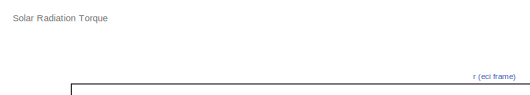
[diagram: root canvas - part 1/8, top left region]
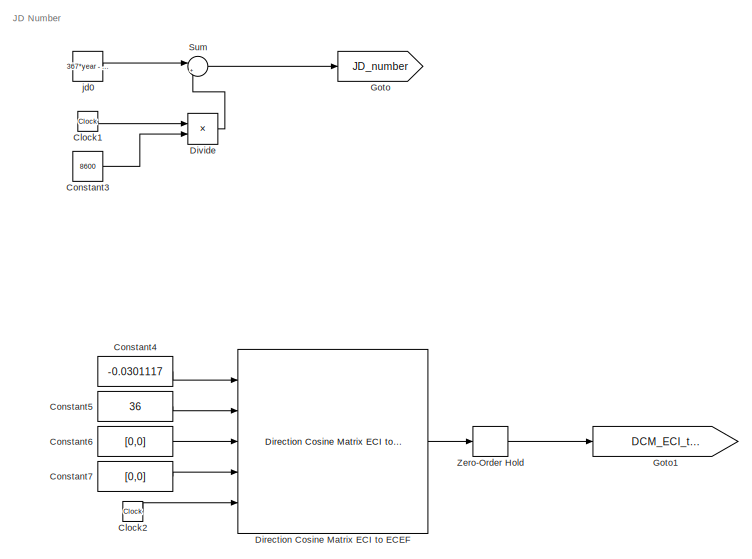
[diagram: root canvas - part 2/8, top left region]
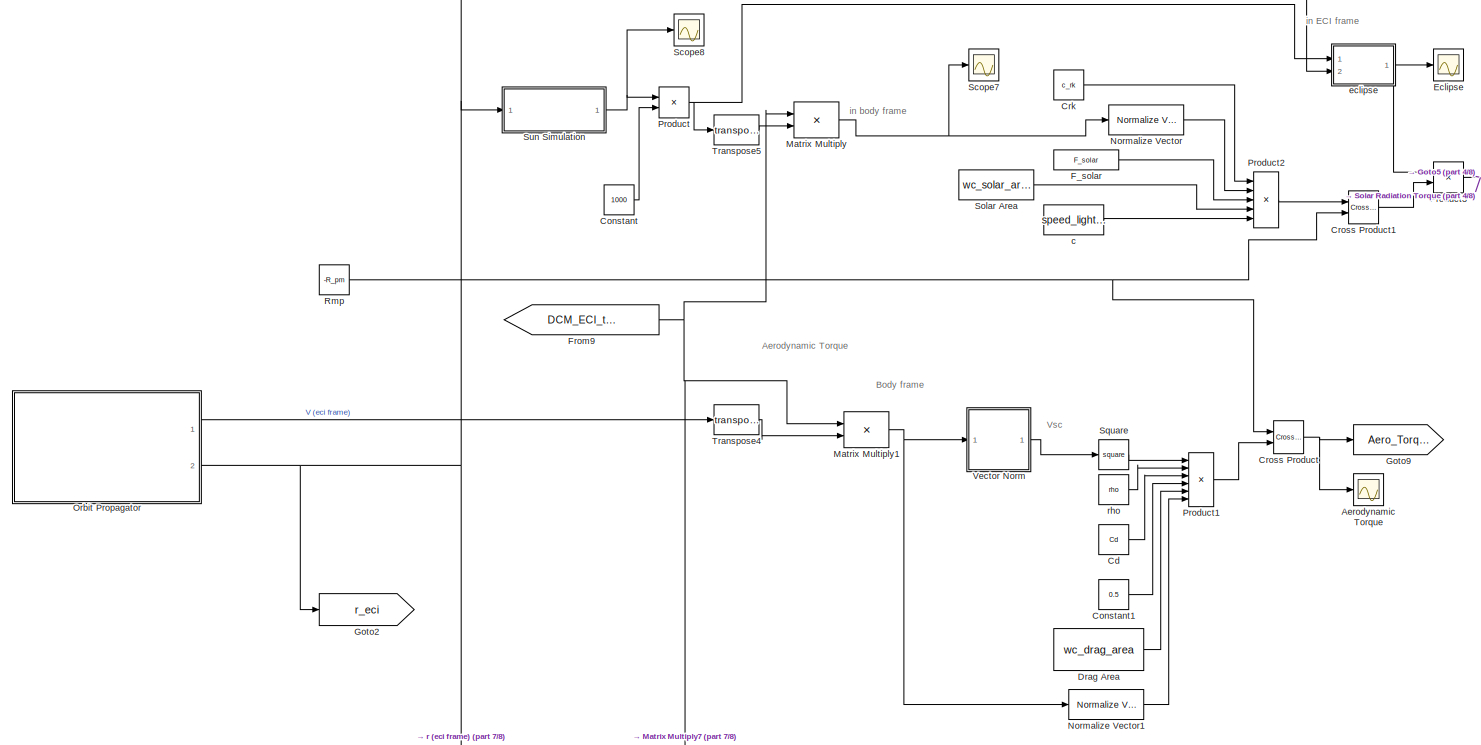
[diagram: root canvas - part 3/8, top center region]
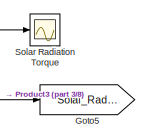
[diagram: root canvas - part 4/8, top center region]
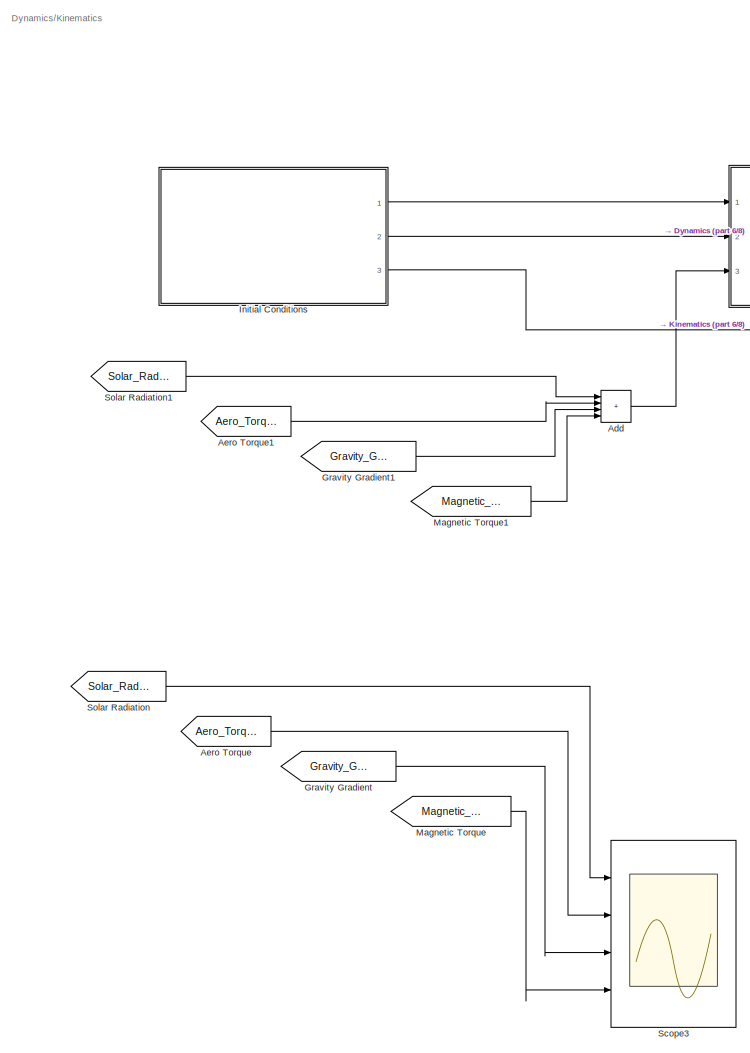
[diagram: root canvas - part 5/8, bottom right region]
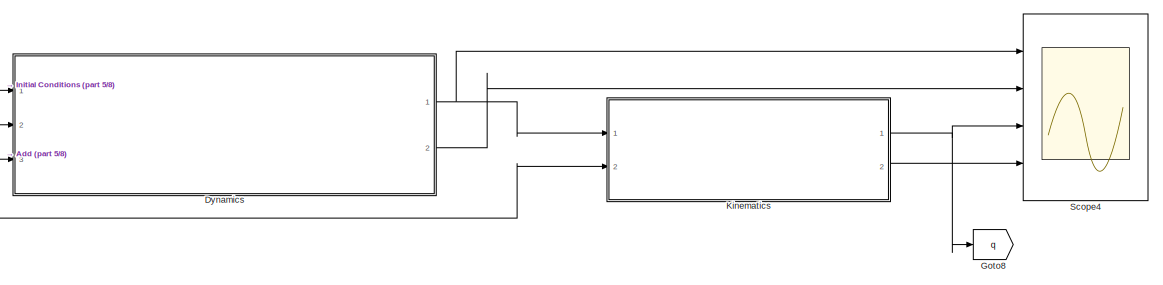
[diagram: root canvas - part 6/8, middle right region]
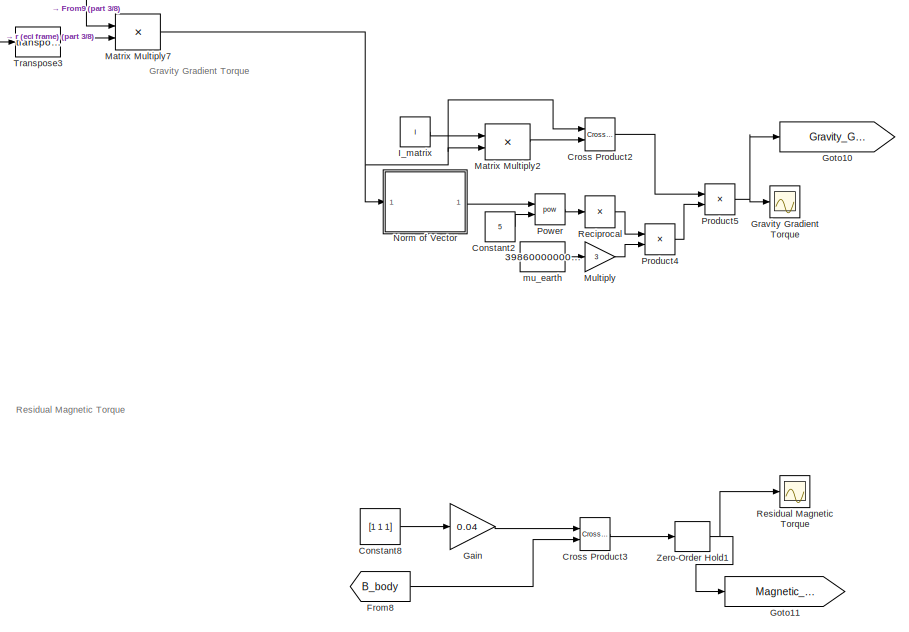
[diagram: root canvas - part 7/8, bottom center region]
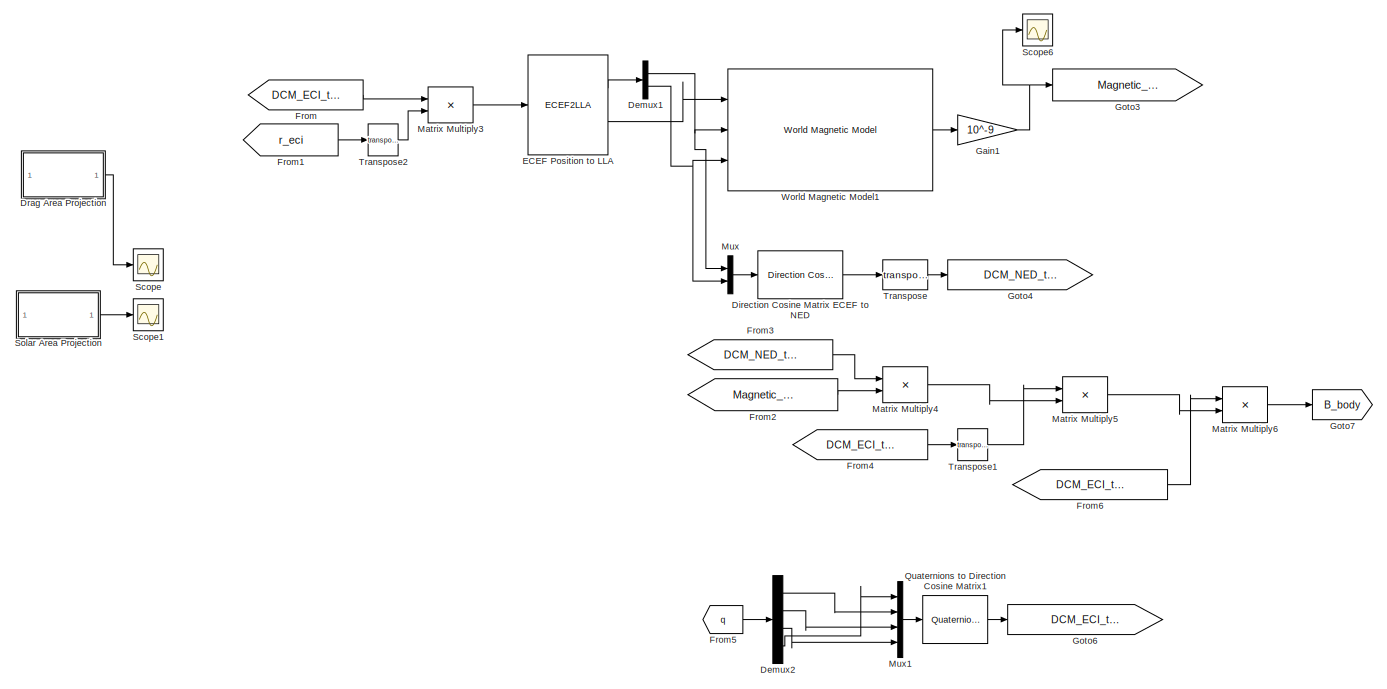
[diagram: root canvas - part 8/8, bottom left region]
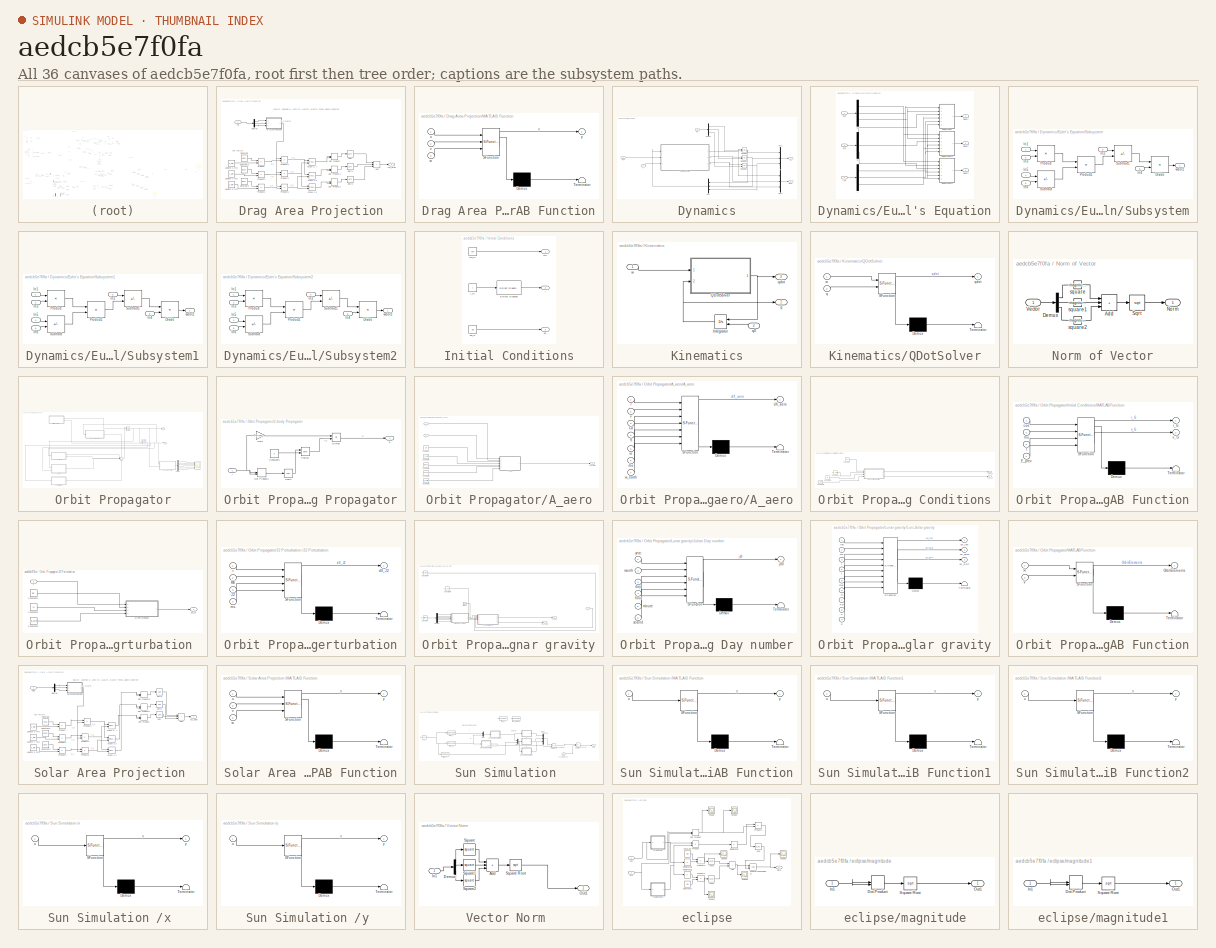
[diagram: thumbnail index - all 36 canvases of the model, root first then tree order]
MODEL slx_aedcb5e7f0fa
KIND model
CONFIG AbsTol = auto
CONFIG EnableMultiTasking = off
CONFIG FixedStep = 1
CONFIG MaxStep = auto
CONFIG MinStep = auto
CONFIG RelTol = 1e-3
CONFIG SampleTimeConstraint = Unconstrained
CONFIG SolverName = FixedStepAuto
CONFIG StartTime = 0.0
CONFIG StopTime = 6000
BLOCK [Sum] Add
  IconShape = rectangular
  Inputs = ++++
  Ports = [4, 1]
BLOCK [From] Aero Torque
  GotoTag = Aero_Torque
BLOCK [From] Aero Torque1
  GotoTag = Aero_Torque
BLOCK [Scope] Aerodynamic Torque
  Floating = off
  NumInputPorts = 1
  Ports = [1]
  ScopeSpecificationString = Simulink.scopes.TimeScopeBlockCfg('CurrentConfiguration', extmgr.ConfigurationSet(extmgr.Configuration('Core','General UI',true,'FigureColor',[1 1 1]),extmgr.Configuration('Core','Source UI',true),extmgr.Configuration('Sources','WiredSimulink',true,'DataLoggingVariableName','ScopeData2'),extmgr.Configuration('Visuals','Time Domain',true,'SerializedDisplays',{struct('MinYLimReal','-0.00000043','Max...<+1931ch>
BLOCK [Constant] Cd 
  Value = Cd
BLOCK [Clock] Clock1
  Commented = on
  Decimation = 1
BLOCK [Clock] Clock2
  Decimation = 1
BLOCK [Constant] Constant
  Value = 1000
BLOCK [Constant] Constant1
  Value = 0.5
BLOCK [Constant] Constant2
  Value = 5
BLOCK [Constant] Constant3
  Commented = on
  SampleTime = 1
  Value = 8600
BLOCK [Constant] Constant4
  SampleTime = 1
  Value = -0.0301117
BLOCK [Constant] Constant5
  SampleTime = 1
  Value = 36
BLOCK [Constant] Constant6
  SampleTime = 1
  Value = [0,0]
BLOCK [Constant] Constant7
  SampleTime = 1
  Value = [0,0]
BLOCK [Constant] Constant8
  Value = [1 1 1]
BLOCK [Constant] Crk
  Value = c_rk
BLOCK [Reference] Cross Product  REF=vrlib/Utilities/Cross Product
  Ports = [2, 1]
  SourceBlock = vrlib/Utilities/Cross Product
  SourceProductBaseCode = SL
  SourceType = Cross Product
BLOCK [Reference] Cross Product1  REF=vrlib/Utilities/Cross Product
  Ports = [2, 1]
  SourceBlock = vrlib/Utilities/Cross Product
  SourceProductBaseCode = SL
  SourceType = Cross Product
BLOCK [Reference] Cross Product2  REF=vrlib/Utilities/Cross Product
  Ports = [2, 1]
  SourceBlock = vrlib/Utilities/Cross Product
  SourceProductBaseCode = SL
  SourceType = Cross Product
BLOCK [Reference] Cross Product3  REF=vrlib/Utilities/Cross Product
  Ports = [2, 1]
  SourceBlock = vrlib/Utilities/Cross Product
  SourceProductBaseCode = SL
  SourceType = Cross Product
BLOCK [Demux] Demux1
  Outputs = 2
  Ports = [1, 2]
BLOCK [Demux] Demux2
  Ports = [1, 4]
BLOCK [Reference] Direction Cosine Matrix ECEF to NED  REF=aerolibtransform2/Direction Cosine Matrix
ECEF to NED
  Ports = [1, 1]
  SourceBlock = aerolibtransform2/Direction Cosine Matrix\nECEF to NED
  SourceProductBaseCode = AE
  SourceType = DCM ECEF to NED
BLOCK [Reference] Direction Cosine Matrix ECI to ECEF  REF=aerolibtransform2/Direction Cosine Matrix
ECI to ECEF
  AttributesFormatString = %<red>
  Ports = [5, 1]
  SourceBlock = aerolibtransform2/Direction Cosine Matrix\nECI to ECEF
  SourceProductBaseCode = AE
  SourceType = DCMECItoECEF
BLOCK [Product] Divide
  Commented = on
  Inputs = */
  Ports = [2, 1]
BLOCK [Constant] Drag Area
  Value = wc_drag_area
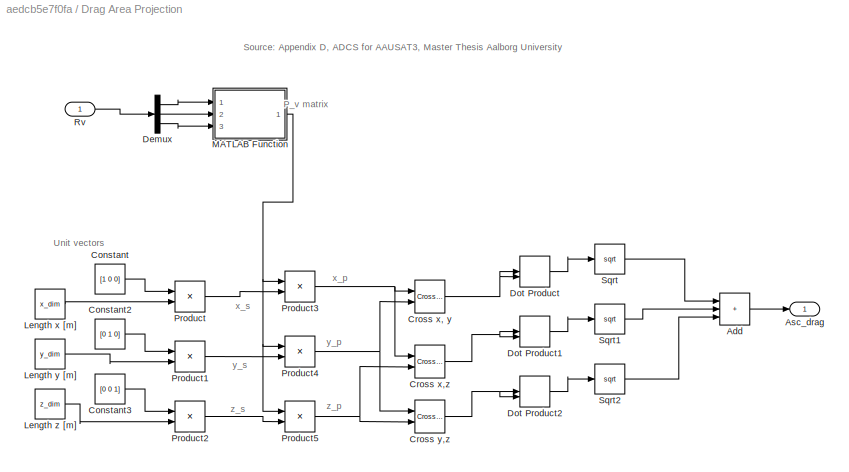
BLOCK [SubSystem] Drag Area Projection
  Commented = on
  Ports = [1, 1]
  RequestExecContextInheritance = off
BLOCK [Sum] Drag Area Projection/Add
  IconShape = rectangular
  Inputs = +++
  Ports = [3, 1]
BLOCK [Outport] Drag Area Projection/Asc_drag
BLOCK [Constant] Drag Area Projection/Constant
  Value = [1 0 0]
BLOCK [Constant] Drag Area Projection/Constant2
  Value = [0 1 0]
BLOCK [Constant] Drag Area Projection/Constant3
  Value = [0 0 1]
BLOCK [Reference] Drag Area Projection/Cross x, y  REF=vrlib/Utilities/Cross Product
  Ports = [2, 1]
  SourceBlock = vrlib/Utilities/Cross Product
  SourceProductBaseCode = SL
  SourceType = Cross Product
BLOCK [Reference] Drag Area Projection/Cross x,z  REF=vrlib/Utilities/Cross Product
  Ports = [2, 1]
  SourceBlock = vrlib/Utilities/Cross Product
  SourceProductBaseCode = SL
  SourceType = Cross Product
BLOCK [Reference] Drag Area Projection/Cross y,z  REF=vrlib/Utilities/Cross Product
  Ports = [2, 1]
  SourceBlock = vrlib/Utilities/Cross Product
  SourceProductBaseCode = SL
  SourceType = Cross Product
BLOCK [Demux] Drag Area Projection/Demux
  Outputs = 3
  Ports = [1, 3]
BLOCK [DotProduct] Drag Area Projection/Dot Product
  OutDataTypeStr = Inherit: Inherit via internal rule
BLOCK [DotProduct] Drag Area Projection/Dot Product1
  OutDataTypeStr = Inherit: Inherit via internal rule
BLOCK [DotProduct] Drag Area Projection/Dot Product2
  OutDataTypeStr = Inherit: Inherit via internal rule
BLOCK [Constant] Drag Area Projection/Length x [m]
  Value = x_dim
BLOCK [Constant] Drag Area Projection/Length y [m]
  Value = y_dim
BLOCK [Constant] Drag Area Projection/Length z [m]
  Value = z_dim
BLOCK [SubSystem] Drag Area Projection/MATLAB Function
  ErrorFcn = Stateflow.Translate.translate
  PermitHierarchicalResolution = ExplicitOnly
  Ports = [3, 1]
  RequestExecContextInheritance = off
  SFBlockType = MATLAB Function
  TreatAsAtomicUnit = on
BLOCK [Demux] Drag Area Projection/MATLAB Function/ Demux 
  Outputs = 1
  Ports = [1, 1]
BLOCK [S-Function] Drag Area Projection/MATLAB Function/ SFunction 
  EnableBusSupport = on
  FunctionName = sf_sfun
  PortCounts = [3 2]
  Ports = [3, 2]
  SFcnIsStateOwnerBlock = off
  SFunctionDeploymentMode = off
  Tag = Stateflow S-Function 11
BLOCK [Terminator] Drag Area Projection/MATLAB Function/ Terminator 
BLOCK [Inport] Drag Area Projection/MATLAB Function/u
BLOCK [Inport] Drag Area Projection/MATLAB Function/v
  Port = 2
BLOCK [Inport] Drag Area Projection/MATLAB Function/w
  Port = 3
BLOCK [Outport] Drag Area Projection/MATLAB Function/y
BLOCK [Product] Drag Area Projection/Product
  Ports = [2, 1]
BLOCK [Product] Drag Area Projection/Product1
  Ports = [2, 1]
BLOCK [Product] Drag Area Projection/Product2
  Ports = [2, 1]
BLOCK [Product] Drag Area Projection/Product3
  Multiplication = Matrix(*)
  Ports = [2, 1]
BLOCK [Product] Drag Area Projection/Product4
  Multiplication = Matrix(*)
  Ports = [2, 1]
BLOCK [Product] Drag Area Projection/Product5
  Multiplication = Matrix(*)
  Ports = [2, 1]
BLOCK [Inport] Drag Area Projection/Rv 
BLOCK [Sqrt] Drag Area Projection/Sqrt
BLOCK [Sqrt] Drag Area Projection/Sqrt1
BLOCK [Sqrt] Drag Area Projection/Sqrt2
BLOCK [SubSystem] Dynamics
  Ports = [3, 2]
  RequestExecContextInheritance = off
BLOCK [Demux] Dynamics/Demux
  Outputs = 3
  Ports = [1, 3]
BLOCK [SubSystem] Dynamics/Euler's Equation
  Ports = [3, 3]
  RequestExecContextInheritance = off
BLOCK [Demux] Dynamics/Euler's Equation/G
  Outputs = 3
  Ports = [1, 3]
BLOCK [Inport] Dynamics/Euler's Equation/G_in
  Port = 2
BLOCK [Demux] Dynamics/Euler's Equation/I
  Outputs = 3
  Ports = [1, 3]
BLOCK [Inport] Dynamics/Euler's Equation/I_in
  Port = 3
BLOCK [SubSystem] Dynamics/Euler's Equation/Subsystem
  Ports = [6, 1]
  RequestExecContextInheritance = off
BLOCK [Product] Dynamics/Euler's Equation/Subsystem/Divide
  Inputs = */
  Ports = [2, 1]
BLOCK [Inport] Dynamics/Euler's Equation/Subsystem/In1
BLOCK [Inport] Dynamics/Euler's Equation/Subsystem/In2
  Port = 3
BLOCK [Inport] Dynamics/Euler's Equation/Subsystem/In3
  Port = 2
BLOCK [Inport] Dynamics/Euler's Equation/Subsystem/In4
  Port = 6
BLOCK [Inport] Dynamics/Euler's Equation/Subsystem/In5
  Port = 4
BLOCK [Inport] Dynamics/Euler's Equation/Subsystem/In6
  Port = 5
BLOCK [Product] Dynamics/Euler's Equation/Subsystem/Product
  Ports = [2, 1]
BLOCK [Product] Dynamics/Euler's Equation/Subsystem/Product1
  Ports = [2, 1]
BLOCK [Sum] Dynamics/Euler's Equation/Subsystem/Subtract
  IconShape = rectangular
  Inputs = +-
  Ports = [2, 1]
BLOCK [Sum] Dynamics/Euler's Equation/Subsystem/Subtract1
  IconShape = rectangular
  Inputs = +-
  Ports = [2, 1]
BLOCK [Outport] Dynamics/Euler's Equation/Subsystem/wdot1
BLOCK [SubSystem] Dynamics/Euler's Equation/Subsystem1
  Ports = [6, 1]
  RequestExecContextInheritance = off
BLOCK [Product] Dynamics/Euler's Equation/Subsystem1/Divide
  Inputs = */
  Ports = [2, 1]
BLOCK [Inport] Dynamics/Euler's Equation/Subsystem1/In1
BLOCK [Inport] Dynamics/Euler's Equation/Subsystem1/In2
  Port = 3
BLOCK [Inport] Dynamics/Euler's Equation/Subsystem1/In3
  Port = 2
BLOCK [Inport] Dynamics/Euler's Equation/Subsystem1/In4
  Port = 6
BLOCK [Inport] Dynamics/Euler's Equation/Subsystem1/In5
  Port = 4
BLOCK [Inport] Dynamics/Euler's Equation/Subsystem1/In6
  Port = 5
BLOCK [Product] Dynamics/Euler's Equation/Subsystem1/Product
  Ports = [2, 1]
BLOCK [Product] Dynamics/Euler's Equation/Subsystem1/Product1
  Ports = [2, 1]
BLOCK [Sum] Dynamics/Euler's Equation/Subsystem1/Subtract
  IconShape = rectangular
  Inputs = +-
  Ports = [2, 1]
BLOCK [Sum] Dynamics/Euler's Equation/Subsystem1/Subtract1
  IconShape = rectangular
  Inputs = +-
  Ports = [2, 1]
BLOCK [Outport] Dynamics/Euler's Equation/Subsystem1/wdot2
BLOCK [SubSystem] Dynamics/Euler's Equation/Subsystem2
  Ports = [6, 1]
  RequestExecContextInheritance = off
BLOCK [Product] Dynamics/Euler's Equation/Subsystem2/Divide
  Inputs = */
  Ports = [2, 1]
BLOCK [Inport] Dynamics/Euler's Equation/Subsystem2/In1
BLOCK [Inport] Dynamics/Euler's Equation/Subsystem2/In2
  Port = 3
BLOCK [Inport] Dynamics/Euler's Equation/Subsystem2/In3
  Port = 2
BLOCK [Inport] Dynamics/Euler's Equation/Subsystem2/In4
  Port = 6
BLOCK [Inport] Dynamics/Euler's Equation/Subsystem2/In5
  Port = 4
BLOCK [Inport] Dynamics/Euler's Equation/Subsystem2/In6
  Port = 5
BLOCK [Product] Dynamics/Euler's Equation/Subsystem2/Product
  Ports = [2, 1]
BLOCK [Product] Dynamics/Euler's Equation/Subsystem2/Product1
  Ports = [2, 1]
BLOCK [Sum] Dynamics/Euler's Equation/Subsystem2/Subtract
  IconShape = rectangular
  Inputs = +-
  Ports = [2, 1]
BLOCK [Sum] Dynamics/Euler's Equation/Subsystem2/Subtract1
  IconShape = rectangular
  Inputs = +-
  Ports = [2, 1]
BLOCK [Outport] Dynamics/Euler's Equation/Subsystem2/wdot3
BLOCK [Demux] Dynamics/Euler's Equation/w
  Outputs = 3
  Ports = [1, 3]
BLOCK [Inport] Dynamics/Euler's Equation/w_in
BLOCK [Outport] Dynamics/Euler's Equation/wdot1
BLOCK [Outport] Dynamics/Euler's Equation/wdot2
  Port = 2
BLOCK [Outport] Dynamics/Euler's Equation/wdot3
  Port = 3
BLOCK [Inport] Dynamics/G_in
  Port = 3
BLOCK [Inport] Dynamics/I
  Port = 2
BLOCK [Integrator] Dynamics/Integrator
  InitialConditionSource = external
  Ports = [2, 1]
BLOCK [Integrator] Dynamics/Integrator1
  InitialConditionSource = external
  Ports = [2, 1]
BLOCK [Integrator] Dynamics/Integrator2
  InitialConditionSource = external
  Ports = [2, 1]
BLOCK [Mux] Dynamics/Mux
  DisplayOption = bar
  Inputs = 3
  NameLocation = top
  Ports = [3, 1]
BLOCK [Mux] Dynamics/Mux1
  DisplayOption = bar
  Inputs = 3
  Ports = [3, 1]
BLOCK [Mux] Dynamics/Mux2
  DisplayOption = bar
  Inputs = 3
  Ports = [3, 1]
BLOCK [Outport] Dynamics/w
BLOCK [Inport] Dynamics/w0
BLOCK [Outport] Dynamics/wdot
  Port = 2
BLOCK [ECEF2LLA] ECEF Position to LLA
  Ports = [1, 2]
BLOCK [Scope] Eclipse
  Floating = off
  NumInputPorts = 1
  Ports = [1]
  ScopeSpecificationString = Simulink.scopes.TimeScopeBlockCfg('CurrentConfiguration', extmgr.ConfigurationSet(extmgr.Configuration('Core','General UI',true,'FigureColor',[1 1 1]),extmgr.Configuration('Core','Source UI',true),extmgr.Configuration('Sources','WiredSimulink',true,'DataLoggingVariableName','ScopeData3'),extmgr.Configuration('Visuals','Time Domain',true,'SerializedDisplays',{struct('MinYLimReal','-0.125','MaxYLimR...<+1814ch>
BLOCK [Constant] F_solar
  Value = F_solar
BLOCK [From] From
  GotoTag = DCM_ECI_to_ECEF
BLOCK [From] From1
  GotoTag = r_eci
BLOCK [From] From2
  GotoTag = Magnetic_Field_NED
BLOCK [From] From3
  GotoTag = DCM_NED_to_ECEF
BLOCK [From] From4
  GotoTag = DCM_ECI_to_ECEF
BLOCK [From] From5
  GotoTag = q
BLOCK [From] From6
  GotoTag = DCM_ECI_to_BODY
BLOCK [From] From8
  GotoTag = B_body
BLOCK [From] From9
  GotoTag = DCM_ECI_to_BODY
BLOCK [Gain] Gain
  Gain = 0.04
BLOCK [Gain] Gain1
  Gain = 10^-9
BLOCK [Goto] Goto
  Commented = on
  GotoTag = JD_number
BLOCK [Goto] Goto1
  GotoTag = DCM_ECI_to_ECEF
BLOCK [Goto] Goto10
  GotoTag = Gravity_Grad_Torque
BLOCK [Goto] Goto11
  GotoTag = Magnetic_Torque
BLOCK [Goto] Goto2
  GotoTag = r_eci
BLOCK [Goto] Goto3
  GotoTag = Magnetic_Field_NED
BLOCK [Goto] Goto4
  GotoTag = DCM_NED_to_ECEF
BLOCK [Goto] Goto5
  GotoTag = Solar_Rad_Torque
BLOCK [Goto] Goto6
  GotoTag = DCM_ECI_to_BODY
BLOCK [Goto] Goto7
  GotoTag = B_body
BLOCK [Goto] Goto8
  GotoTag = q
BLOCK [Goto] Goto9
  GotoTag = Aero_Torque
BLOCK [From] Gravity Gradient
  GotoTag = Gravity_Grad_Torque
BLOCK [Scope] Gravity Gradient Torque
  Floating = off
  NumInputPorts = 1
  Ports = [1]
  ScopeSpecificationString = Simulink.scopes.TimeScopeBlockCfg('CurrentConfiguration', extmgr.ConfigurationSet(extmgr.Configuration('Core','General UI',true,'FigureColor',[1 1 1]),extmgr.Configuration('Core','Source UI',true),extmgr.Configuration('Sources','WiredSimulink',true,'DataLoggingVariableName','ScopeData6'),extmgr.Configuration('Visuals','Time Domain',true,'SerializedDisplays',{struct('MinYLimReal','-0.00000005','Max...<+1908ch>
BLOCK [From] Gravity Gradient1
  GotoTag = Gravity_Grad_Torque
BLOCK [Constant] I_matrix
  Value = I
BLOCK [SubSystem] Initial Conditions
  Ports = [0, 3]
  RequestExecContextInheritance = off
BLOCK [Reference] Initial Conditions/Extract Diagonal  REF=dspmtrx3/Extract Diagonal
  Ports = [1, 1]
  SourceBlock = dspmtrx3/Extract Diagonal
  SourceProductBaseCode = DS
  SourceType = Extract Diagonal
BLOCK [Outport] Initial Conditions/I
  Port = 2
BLOCK [Constant] Initial Conditions/I_in
  Value = I
BLOCK [Outport] Initial Conditions/q0
  Port = 3
BLOCK [Constant] Initial Conditions/q0_in
  Value = q0
BLOCK [Outport] Initial Conditions/w0
BLOCK [Constant] Initial Conditions/w0_in
  Value = W0
BLOCK [SubSystem] Kinematics
  Ports = [2, 2]
  RequestExecContextInheritance = off
BLOCK [Integrator] Kinematics/Integrator
  InitialConditionSource = external
  NameLocation = top
  Ports = [2, 1]
BLOCK [SubSystem] Kinematics/QDotSolver
  ErrorFcn = Stateflow.Translate.translate
  PermitHierarchicalResolution = ExplicitOnly
  Ports = [2, 1]
  RequestExecContextInheritance = off
  SFBlockType = MATLAB Function
  TreatAsAtomicUnit = on
BLOCK [Demux] Kinematics/QDotSolver/ Demux 
  Outputs = 1
  Ports = [1, 1]
BLOCK [S-Function] Kinematics/QDotSolver/ SFunction 
  EnableBusSupport = on
  FunctionName = sf_sfun
  PortCounts = [2 2]
  Ports = [2, 2]
  SFcnIsStateOwnerBlock = off
  SFunctionDeploymentMode = off
  Tag = Stateflow S-Function 16
BLOCK [Terminator] Kinematics/QDotSolver/ Terminator 
BLOCK [Inport] Kinematics/QDotSolver/q
  Port = 2
BLOCK [Outport] Kinematics/QDotSolver/qdot
BLOCK [Inport] Kinematics/QDotSolver/w
BLOCK [Outport] Kinematics/q
BLOCK [Inport] Kinematics/q0
  NameLocation = top
  Port = 2
BLOCK [Outport] Kinematics/qdot
  Port = 2
BLOCK [Inport] Kinematics/w
BLOCK [From] Magnetic Torque
  GotoTag = Magnetic_Torque
BLOCK [From] Magnetic Torque1
  GotoTag = Magnetic_Torque
BLOCK [Product] Matrix Multiply
  Multiplication = Matrix(*)
  Ports = [2, 1]
BLOCK [Product] Matrix Multiply1
  Multiplication = Matrix(*)
  Ports = [2, 1]
BLOCK [Product] Matrix Multiply2
  Multiplication = Matrix(*)
  Ports = [2, 1]
BLOCK [Product] Matrix Multiply3
  Multiplication = Matrix(*)
  Ports = [2, 1]
BLOCK [Product] Matrix Multiply4
  Multiplication = Matrix(*)
  Ports = [2, 1]
BLOCK [Product] Matrix Multiply5
  Multiplication = Matrix(*)
  Ports = [2, 1]
BLOCK [Product] Matrix Multiply6
  Multiplication = Matrix(*)
  Ports = [2, 1]
BLOCK [Product] Matrix Multiply7
  Multiplication = Matrix(*)
  Ports = [2, 1]
BLOCK [Gain] Multiply
  Gain = 3
BLOCK [Mux] Mux
  DisplayOption = bar
  Inputs = 2
  Ports = [2, 1]
BLOCK [Mux] Mux1
  DisplayOption = bar
  Ports = [4, 1]
BLOCK [SubSystem] Norm of Vector
  Ports = [1, 1]
  RequestExecContextInheritance = off
BLOCK [Sum] Norm of Vector/Add
  IconShape = rectangular
  Inputs = +++
  Ports = [3, 1]
BLOCK [Demux] Norm of Vector/Demux
  Outputs = 3
  Ports = [1, 3]
BLOCK [Outport] Norm of Vector/Norm
BLOCK [Sqrt] Norm of Vector/Sqrt
BLOCK [Inport] Norm of Vector/Vector
BLOCK [Math] Norm of Vector/square
  Operator = magnitude^2
  Ports = [1, 1]
BLOCK [Math] Norm of Vector/square1
  Operator = magnitude^2
  Ports = [1, 1]
BLOCK [Math] Norm of Vector/square2
  Operator = magnitude^2
  Ports = [1, 1]
BLOCK [Reference] Normalize Vector  REF=vrlib/Utilities/Normalize Vector
  Ports = [1, 1]
  SourceBlock = vrlib/Utilities/Normalize Vector
  SourceProductBaseCode = SL
  SourceType = Normalize Vector
BLOCK [Reference] Normalize Vector1  REF=vrlib/Utilities/Normalize Vector
  Ports = [1, 1]
  SourceBlock = vrlib/Utilities/Normalize Vector
  SourceProductBaseCode = SL
  SourceType = Normalize Vector
BLOCK [SubSystem] Orbit Propagator
  Ports = [0, 2]
  RequestExecContextInheritance = off
BLOCK [SubSystem] Orbit Propagator/2-body Propagator
  Ports = [1, 1]
  RequestExecContextInheritance = off
BLOCK [Constant] Orbit Propagator/2-body Propagator/Constant3
  Value = 3
BLOCK [Product] Orbit Propagator/2-body Propagator/Divide
  Inputs = */
  Ports = [2, 1]
BLOCK [DotProduct] Orbit Propagator/2-body Propagator/Dot Product2
  OutDataTypeStr = Inherit: Inherit via internal rule
BLOCK [Gain] Orbit Propagator/2-body Propagator/Gain
  Gain = -mu_earth
BLOCK [Math] Orbit Propagator/2-body Propagator/Power1
  Operator = pow
  Ports = [2, 1]
  SignedPower = on
BLOCK [Sqrt] Orbit Propagator/2-body Propagator/Sqrt2
BLOCK [Outport] Orbit Propagator/2-body Propagator/a
  VectorParamsAs1DForOutWhenUnconnected = off
BLOCK [Inport] Orbit Propagator/2-body Propagator/r
BLOCK [SubSystem] Orbit Propagator/A_aero
  Commented = on
  Ports = [2, 1]
  RequestExecContextInheritance = off
BLOCK [SubSystem] Orbit Propagator/A_aero/A_aero
  ErrorFcn = Stateflow.Translate.translate
  PermitHierarchicalResolution = ExplicitOnly
  Ports = [7, 1]
  RequestExecContextInheritance = off
  SFBlockType = MATLAB Function
  TreatAsAtomicUnit = on
BLOCK [Demux] Orbit Propagator/A_aero/A_aero/ Demux 
  Outputs = 1
  Ports = [1, 1]
BLOCK [S-Function] Orbit Propagator/A_aero/A_aero/ SFunction 
  EnableBusSupport = on
  FunctionName = sf_sfun
  PortCounts = [7 2]
  Ports = [7, 2]
  SFcnIsStateOwnerBlock = off
  SFunctionDeploymentMode = off
  Tag = Stateflow S-Function 2
BLOCK [Terminator] Orbit Propagator/A_aero/A_aero/ Terminator 
BLOCK [Inport] Orbit Propagator/A_aero/A_aero/Cd
  Port = 3
BLOCK [Inport] Orbit Propagator/A_aero/A_aero/S
  Port = 4
BLOCK [Outport] Orbit Propagator/A_aero/A_aero/dX_aero
  VectorParamsAs1DForOutWhenUnconnected = off
BLOCK [Inport] Orbit Propagator/A_aero/A_aero/m
  Port = 5
BLOCK [Inport] Orbit Propagator/A_aero/A_aero/r
BLOCK [Inport] Orbit Propagator/A_aero/A_aero/rho
  Port = 6
BLOCK [Inport] Orbit Propagator/A_aero/A_aero/v
  Port = 2
BLOCK [Inport] Orbit Propagator/A_aero/A_aero/w_earth
  Port = 7
BLOCK [Constant] Orbit Propagator/A_aero/Constant
  Value = Cd
BLOCK [Constant] Orbit Propagator/A_aero/Constant1
  Value = mass
BLOCK [Constant] Orbit Propagator/A_aero/Constant2
  Value = S_norm
BLOCK [Constant] Orbit Propagator/A_aero/Constant3
  Value = w_earth
BLOCK [Constant] Orbit Propagator/A_aero/Constant4
  Value = 2.01e-12
BLOCK [Outport] Orbit Propagator/A_aero/dX_aero
  VectorParamsAs1DForOutWhenUnconnected = off
BLOCK [Inport] Orbit Propagator/A_aero/r
  Port = 2
BLOCK [Inport] Orbit Propagator/A_aero/v
BLOCK [Demux] Orbit Propagator/Demux
  Outputs = 6
  Ports = [1, 6]
BLOCK [SubSystem] Orbit Propagator/Initial Conditions
  Ports = [0, 2]
  RequestExecContextInheritance = off
BLOCK [Constant] Orbit Propagator/Initial Conditions/Constant
  Value = coe
BLOCK [Constant] Orbit Propagator/Initial Conditions/Constant1
  Value = mu_earth
BLOCK [Constant] Orbit Propagator/Initial Conditions/Constant2
  Value = t0
BLOCK [Constant] Orbit Propagator/Initial Conditions/Constant3
  Value = E_prev
BLOCK [SubSystem] Orbit Propagator/Initial Conditions/MATLAB Function
  ErrorFcn = Stateflow.Translate.translate
  PermitHierarchicalResolution = ExplicitOnly
  Ports = [4, 2]
  RequestExecContextInheritance = off
  SFBlockType = MATLAB Function
  TreatAsAtomicUnit = on
BLOCK [Demux] Orbit Propagator/Initial Conditions/MATLAB Function/ Demux 
  Outputs = 1
  Ports = [1, 1]
BLOCK [S-Function] Orbit Propagator/Initial Conditions/MATLAB Function/ SFunction 
  EnableBusSupport = on
  FunctionName = sf_sfun
  PortCounts = [4 3]
  Ports = [4, 3]
  SFcnIsStateOwnerBlock = off
  SFunctionDeploymentMode = off
  Tag = Stateflow S-Function 3
BLOCK [Terminator] Orbit Propagator/Initial Conditions/MATLAB Function/ Terminator 
BLOCK [Inport] Orbit Propagator/Initial Conditions/MATLAB Function/E_prev
  Port = 4
BLOCK [Inport] Orbit Propagator/Initial Conditions/MATLAB Function/coe
BLOCK [Inport] Orbit Propagator/Initial Conditions/MATLAB Function/mu
  Port = 2
BLOCK [Outport] Orbit Propagator/Initial Conditions/MATLAB Function/r_G
  VectorParamsAs1DForOutWhenUnconnected = off
BLOCK [Inport] Orbit Propagator/Initial Conditions/MATLAB Function/t
  Port = 3
BLOCK [Outport] Orbit Propagator/Initial Conditions/MATLAB Function/v_G
  Port = 2
  VectorParamsAs1DForOutWhenUnconnected = off
BLOCK [Outport] Orbit Propagator/Initial Conditions/r_eci_0
  Port = 2
  VectorParamsAs1DForOutWhenUnconnected = off
BLOCK [Outport] Orbit Propagator/Initial Conditions/v_eci_0
  VectorParamsAs1DForOutWhenUnconnected = off
BLOCK [Integrator] Orbit Propagator/Integrator
  InitialCondition = v0
  InitialConditionSource = external
  Ports = [2, 1]
BLOCK [Integrator] Orbit Propagator/Integrator1
  InitialCondition = v0
  InitialConditionSource = external
  Ports = [2, 1]
BLOCK [SubSystem] Orbit Propagator/J2 Perturbation 
  Ports = [1, 1]
  RequestExecContextInheritance = off
BLOCK [Constant] Orbit Propagator/J2 Perturbation /Constant1
  Value = RE
BLOCK [Constant] Orbit Propagator/J2 Perturbation /Constant2
  Value = J2
BLOCK [Constant] Orbit Propagator/J2 Perturbation /Constant5
  Value = mu_earth
BLOCK [SubSystem] Orbit Propagator/J2 Perturbation /J2 Perturbation
  ErrorFcn = Stateflow.Translate.translate
  PermitHierarchicalResolution = ExplicitOnly
  Ports = [4, 1]
  RequestExecContextInheritance = off
  SFBlockType = MATLAB Function
  TreatAsAtomicUnit = on
BLOCK [Demux] Orbit Propagator/J2 Perturbation /J2 Perturbation/ Demux 
  Outputs = 1
  Ports = [1, 1]
BLOCK [S-Function] Orbit Propagator/J2 Perturbation /J2 Perturbation/ SFunction 
  EnableBusSupport = on
  FunctionName = sf_sfun
  PortCounts = [4 2]
  Ports = [4, 2]
  SFcnIsStateOwnerBlock = off
  SFunctionDeploymentMode = off
  Tag = Stateflow S-Function 1
BLOCK [Terminator] Orbit Propagator/J2 Perturbation /J2 Perturbation/ Terminator 
BLOCK [Inport] Orbit Propagator/J2 Perturbation /J2 Perturbation/J2
  Port = 3
BLOCK [Inport] Orbit Propagator/J2 Perturbation /J2 Perturbation/RE
  Port = 2
BLOCK [Outport] Orbit Propagator/J2 Perturbation /J2 Perturbation/dX_J2
  VectorParamsAs1DForOutWhenUnconnected = off
BLOCK [Inport] Orbit Propagator/J2 Perturbation /J2 Perturbation/mu
  Port = 4
BLOCK [Inport] Orbit Propagator/J2 Perturbation /J2 Perturbation/r
BLOCK [Outport] Orbit Propagator/J2 Perturbation /dX_J2
  VectorParamsAs1DForOutWhenUnconnected = off
BLOCK [Inport] Orbit Propagator/J2 Perturbation /r
BLOCK [SubSystem] Orbit Propagator/Lunar gravity
  Commented = on
  Ports = [1, 2]
  RequestExecContextInheritance = off
BLOCK [Clock] Orbit Propagator/Lunar gravity/Clock
BLOCK [Constant] Orbit Propagator/Lunar gravity/Constant
  Value = [year,month,day,hours,minutes,seconds]
BLOCK [Constant] Orbit Propagator/Lunar gravity/Constant4
  Value = mu_moon
BLOCK [Constant] Orbit Propagator/Lunar gravity/Constant6
  Value = mu_sun
BLOCK [Demux] Orbit Propagator/Lunar gravity/Demux
  Outputs = 6
  Ports = [1, 6]
BLOCK [SubSystem] Orbit Propagator/Lunar gravity/Julian Day number
  ErrorFcn = Stateflow.Translate.translate
  PermitHierarchicalResolution = ExplicitOnly
  Ports = [6, 1]
  RequestExecContextInheritance = off
  SFBlockType = MATLAB Function
  TreatAsAtomicUnit = on
BLOCK [Demux] Orbit Propagator/Lunar gravity/Julian Day number/ Demux 
  Outputs = 1
  Ports = [1, 1]
BLOCK [S-Function] Orbit Propagator/Lunar gravity/Julian Day number/ SFunction 
  EnableBusSupport = on
  FunctionName = sf_sfun
  PortCounts = [6 2]
  Ports = [6, 2]
  SFcnIsStateOwnerBlock = off
  SFunctionDeploymentMode = off
  Tag = Stateflow S-Function 4
BLOCK [Terminator] Orbit Propagator/Lunar gravity/Julian Day number/ Terminator 
BLOCK [Inport] Orbit Propagator/Lunar gravity/Julian Day number/day
  Port = 3
BLOCK [Inport] Orbit Propagator/Lunar gravity/Julian Day number/hour
  Port = 4
BLOCK [Outport] Orbit Propagator/Lunar gravity/Julian Day number/jd0
  VectorParamsAs1DForOutWhenUnconnected = off
BLOCK [Inport] Orbit Propagator/Lunar gravity/Julian Day number/minute
  Port = 5
BLOCK [Inport] Orbit Propagator/Lunar gravity/Julian Day number/month
  Port = 2
BLOCK [Inport] Orbit Propagator/Lunar gravity/Julian Day number/second
  Port = 6
BLOCK [Inport] Orbit Propagator/Lunar gravity/Julian Day number/year
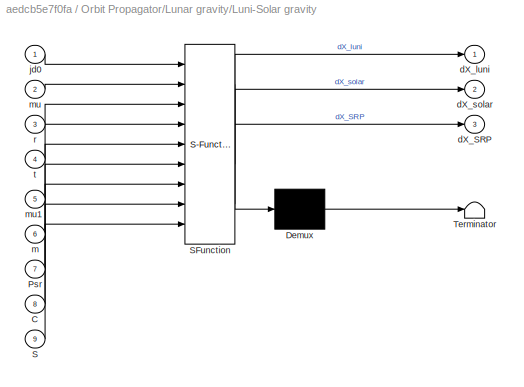
BLOCK [SubSystem] Orbit Propagator/Lunar gravity/Luni-Solar gravity
  ErrorFcn = Stateflow.Translate.translate
  PermitHierarchicalResolution = ExplicitOnly
  Ports = [9, 3]
  RequestExecContextInheritance = off
  SFBlockType = MATLAB Function
  TreatAsAtomicUnit = on
BLOCK [Demux] Orbit Propagator/Lunar gravity/Luni-Solar gravity/ Demux 
  Outputs = 1
  Ports = [1, 1]
BLOCK [S-Function] Orbit Propagator/Lunar gravity/Luni-Solar gravity/ SFunction 
  EnableBusSupport = on
  FunctionName = sf_sfun
  PortCounts = [9 4]
  Ports = [9, 4]
  SFcnIsStateOwnerBlock = off
  SFunctionDeploymentMode = off
  Tag = Stateflow S-Function 5
BLOCK [Terminator] Orbit Propagator/Lunar gravity/Luni-Solar gravity/ Terminator 
BLOCK [Inport] Orbit Propagator/Lunar gravity/Luni-Solar gravity/C
  Port = 8
BLOCK [Inport] Orbit Propagator/Lunar gravity/Luni-Solar gravity/Psr
  Port = 7
BLOCK [Inport] Orbit Propagator/Lunar gravity/Luni-Solar gravity/S
  Port = 9
BLOCK [Outport] Orbit Propagator/Lunar gravity/Luni-Solar gravity/dX_SRP
  Port = 3
  VectorParamsAs1DForOutWhenUnconnected = off
BLOCK [Outport] Orbit Propagator/Lunar gravity/Luni-Solar gravity/dX_luni
  VectorParamsAs1DForOutWhenUnconnected = off
BLOCK [Outport] Orbit Propagator/Lunar gravity/Luni-Solar gravity/dX_solar
  Port = 2
  VectorParamsAs1DForOutWhenUnconnected = off
BLOCK [Inport] Orbit Propagator/Lunar gravity/Luni-Solar gravity/jd0
BLOCK [Inport] Orbit Propagator/Lunar gravity/Luni-Solar gravity/m
  Port = 6
BLOCK [Inport] Orbit Propagator/Lunar gravity/Luni-Solar gravity/mu
  Port = 2
BLOCK [Inport] Orbit Propagator/Lunar gravity/Luni-Solar gravity/mu1
  Port = 5
BLOCK [Inport] Orbit Propagator/Lunar gravity/Luni-Solar gravity/r
  Port = 3
BLOCK [Inport] Orbit Propagator/Lunar gravity/Luni-Solar gravity/t
  Port = 4
BLOCK [Outport] Orbit Propagator/Lunar gravity/dX_luni
  VectorParamsAs1DForOutWhenUnconnected = off
BLOCK [Outport] Orbit Propagator/Lunar gravity/dX_solar
  Port = 2
  VectorParamsAs1DForOutWhenUnconnected = off
BLOCK [Inport] Orbit Propagator/Lunar gravity/r
BLOCK [SubSystem] Orbit Propagator/MATLAB Function
  ErrorFcn = Stateflow.Translate.translate
  PermitHierarchicalResolution = ExplicitOnly
  Ports = [2, 1]
  RequestExecContextInheritance = off
  SFBlockType = MATLAB Function
  TreatAsAtomicUnit = on
BLOCK [Demux] Orbit Propagator/MATLAB Function/ Demux 
  Outputs = 1
  Ports = [1, 1]
BLOCK [S-Function] Orbit Propagator/MATLAB Function/ SFunction 
  EnableBusSupport = on
  FunctionName = sf_sfun
  PortCounts = [2 2]
  Ports = [2, 2]
  SFcnIsStateOwnerBlock = off
  SFunctionDeploymentMode = off
  Tag = Stateflow S-Function 9
BLOCK [Terminator] Orbit Propagator/MATLAB Function/ Terminator 
BLOCK [Outport] Orbit Propagator/MATLAB Function/OrbitElements
  VectorParamsAs1DForOutWhenUnconnected = off
BLOCK [Inport] Orbit Propagator/MATLAB Function/R
BLOCK [Inport] Orbit Propagator/MATLAB Function/V
  Port = 2
BLOCK [Scope] Orbit Propagator/Scope
  Floating = off
  NumInputPorts = 6
  Ports = [6]
  ScopeSpecificationString = Simulink.scopes.TimeScopeBlockCfg('CurrentConfiguration', extmgr.ConfigurationSet(extmgr.Configuration('Core','General UI',true),extmgr.Configuration('Core','Source UI',true),extmgr.Configuration('Sources','WiredSimulink',true,'DataLoggingVariableName','ScopeData2'),extmgr.Configuration('Visuals','Time Domain',true,'SerializedDisplays',{struct('MinYLimReal','6606562.10759','MaxYLimReal','7662454.0...<+4798ch>
BLOCK [Sum] Orbit Propagator/Sum
  Inputs = +++++
  Ports = [5, 1]
BLOCK [Outport] Orbit Propagator/r_eci
  Port = 2
  VectorParamsAs1DForOutWhenUnconnected = off
BLOCK [Outport] Orbit Propagator/v_eci
  VectorParamsAs1DForOutWhenUnconnected = off
BLOCK [Math] Power
  Operator = pow
  Ports = [2, 1]
BLOCK [Product] Product
  Ports = [2, 1]
BLOCK [Product] Product1
  Inputs = 6
  Ports = [6, 1]
BLOCK [Product] Product2
  Inputs = 5
  Ports = [5, 1]
BLOCK [Product] Product3
  Ports = [2, 1]
BLOCK [Product] Product4
  Ports = [2, 1]
BLOCK [Product] Product5
  Ports = [2, 1]
BLOCK [Reference] Quaternions to Direction Cosine Matrix1  REF=sharedtransform/Quaternions to 
Direction Cosine Matrix
  Ports = [1, 1]
  SourceBlock = sharedtransform/Quaternions to \nDirection Cosine Matrix
  SourceProductBaseCode = AE,PW,DR,MT,UV,VE
  SourceType = Quaternion2DCM
BLOCK [Product] Reciprocal
  Inputs = /
  Ports = [1, 1]
BLOCK [Scope] Residual Magnetic Torque
  Floating = off
  NumInputPorts = 1
  Ports = [1]
  ScopeSpecificationString = Simulink.scopes.TimeScopeBlockCfg('CurrentConfiguration', extmgr.ConfigurationSet(extmgr.Configuration('Core','General UI',true,'FigureColor',[1 1 1]),extmgr.Configuration('Core','Source UI',true),extmgr.Configuration('Sources','WiredSimulink',true,'DataLoggingVariableName','ScopeData3'),extmgr.Configuration('Visuals','Time Domain',true,'SerializedDisplays',{struct('MinYLimReal','-0.0000038','MaxY...<+1834ch>
BLOCK [Constant] Rmp 
  Value = -R_pm
BLOCK [Scope] Scope
  Commented = on
  Floating = off
  NumInputPorts = 1
  Ports = [1]
  ScopeSpecificationString = Simulink.scopes.TimeScopeBlockCfg('CurrentConfiguration', extmgr.ConfigurationSet(extmgr.Configuration('Core','General UI',true),extmgr.Configuration('Core','Source UI',true),extmgr.Configuration('Sources','WiredSimulink',true,'DataLoggingVariableName','ScopeData1'),extmgr.Configuration('Visuals','Time Domain',true,'SerializedDisplays',{struct('MinYLimReal','-3076193173.32703','MaxYLimReal','27685...<+1453ch>
BLOCK [Scope] Scope1
  Commented = on
  Floating = off
  NumInputPorts = 1
  Ports = [1]
  ScopeSpecificationString = Simulink.scopes.TimeScopeBlockCfg('CurrentConfiguration', extmgr.ConfigurationSet(extmgr.Configuration('Core','General UI',true),extmgr.Configuration('Core','Source UI',true),extmgr.Configuration('Sources','WiredSimulink',true,'DataLoggingVariableName','ScopeData2'),extmgr.Configuration('Visuals','Time Domain',true,'SerializedDisplays',{struct('MinYLimReal','2.64566','MaxYLimReal','4.64993','YLabe...<+1379ch>
BLOCK [Scope] Scope3
  Floating = off
  NumInputPorts = 4
  Ports = [4]
  ScopeSpecificationString = Simulink.scopes.TimeScopeBlockCfg('CurrentConfiguration', extmgr.ConfigurationSet(extmgr.Configuration('Core','General UI',true,'FigureColor',[1 1 1]),extmgr.Configuration('Core','Source UI',true),extmgr.Configuration('Sources','WiredSimulink',true,'DataLoggingVariableName','ScopeData2'),extmgr.Configuration('Visuals','Time Domain',true,'SerializedDisplays',{struct('MinYLimReal','-0.0000001','MaxY...<+4506ch>
BLOCK [Scope] Scope4
  Floating = off
  NumInputPorts = 4
  Ports = [4]
  ScopeSpecificationString = Simulink.scopes.TimeScopeBlockCfg('CurrentConfiguration', extmgr.ConfigurationSet(extmgr.Configuration('Core','General UI',true,'FigureColor',[1 1 1]),extmgr.Configuration('Core','Source UI',true),extmgr.Configuration('Sources','WiredSimulink',true,'DataLoggingVariableName','ScopeData1'),extmgr.Configuration('Visuals','Time Domain',true,'SerializedDisplays',{struct('MinYLimReal','-0.0193','MaxYLim...<+4105ch>
BLOCK [Scope] Scope6
  Floating = off
  NumInputPorts = 1
  Ports = [1]
  ScopeSpecificationString = Simulink.scopes.TimeScopeBlockCfg('CurrentConfiguration', extmgr.ConfigurationSet(extmgr.Configuration('Core','General UI',true),extmgr.Configuration('Core','Source UI',true),extmgr.Configuration('Sources','WiredSimulink',true,'DataLoggingVariableName','ScopeData2'),extmgr.Configuration('Visuals','Time Domain',true,'SerializedDisplays',{struct('MinYLimReal','-0.00007','MaxYLimReal','0.00007','YLab...<+1415ch>
BLOCK [Scope] Scope7
  Floating = off
  NumInputPorts = 1
  Ports = [1]
  ScopeSpecificationString = Simulink.scopes.TimeScopeBlockCfg('CurrentConfiguration', extmgr.ConfigurationSet(extmgr.Configuration('Core','General UI',true),extmgr.Configuration('Core','Source UI',true),extmgr.Configuration('Sources','WiredSimulink',true,'DataLoggingVariableName','ScopeData2'),extmgr.Configuration('Visuals','Time Domain',true,'SerializedDisplays',{struct('MinYLimReal','-197191572647.26083','MaxYLimReal','197...<+1500ch>
BLOCK [Scope] Scope8
  Floating = off
  NumInputPorts = 1
  Ports = [1]
  ScopeSpecificationString = Simulink.scopes.TimeScopeBlockCfg('CurrentConfiguration', extmgr.ConfigurationSet(extmgr.Configuration('Core','General UI',true),extmgr.Configuration('Core','Source UI',true),extmgr.Configuration('Sources','WiredSimulink',true,'DataLoggingVariableName','ScopeData3'),extmgr.Configuration('Visuals','Time Domain',true,'SerializedDisplays',{struct('MinYLimReal','33100540.80909','MaxYLimReal','14797461...<+1474ch>
BLOCK [Constant] Solar Area
  Value = wc_solar_area
BLOCK [SubSystem] Solar Area Projection 
  Commented = on
  Ports = [1, 1]
  RequestExecContextInheritance = off
BLOCK [Sum] Solar Area Projection /Add1
  IconShape = rectangular
  Inputs = +++
  Ports = [3, 1]
BLOCK [Outport] Solar Area Projection /Asc_solar
BLOCK [Constant] Solar Area Projection /Constant
  Value = [1 0 0]
  VectorParams1D = off
BLOCK [Constant] Solar Area Projection /Constant2
  Value = [0 1 0]
  VectorParams1D = off
BLOCK [Constant] Solar Area Projection /Constant3
  Value = [0 0 1]
  VectorParams1D = off
BLOCK [Reference] Solar Area Projection /Cross x, y  REF=vrlib/Utilities/Cross Product
  Ports = [2, 1]
  SourceBlock = vrlib/Utilities/Cross Product
  SourceProductBaseCode = SL
  SourceType = Cross Product
BLOCK [Reference] Solar Area Projection /Cross x,z  REF=vrlib/Utilities/Cross Product
  Ports = [2, 1]
  SourceBlock = vrlib/Utilities/Cross Product
  SourceProductBaseCode = SL
  SourceType = Cross Product
BLOCK [Reference] Solar Area Projection /Cross y,z  REF=vrlib/Utilities/Cross Product
  Ports = [2, 1]
  SourceBlock = vrlib/Utilities/Cross Product
  SourceProductBaseCode = SL
  SourceType = Cross Product
BLOCK [Demux] Solar Area Projection /Demux
  Outputs = 3
  Ports = [1, 3]
BLOCK [DotProduct] Solar Area Projection /Dot Product
  OutDataTypeStr = Inherit: Inherit via internal rule
BLOCK [DotProduct] Solar Area Projection /Dot Product1
  OutDataTypeStr = Inherit: Inherit via internal rule
BLOCK [DotProduct] Solar Area Projection /Dot Product2
  OutDataTypeStr = Inherit: Inherit via internal rule
BLOCK [Constant] Solar Area Projection /Length x [m]
  Value = x_dim
BLOCK [Constant] Solar Area Projection /Length y [m]
  Value = y_dim
BLOCK [Constant] Solar Area Projection /Length z [m]
  Value = z_dim
BLOCK [SubSystem] Solar Area Projection /MATLAB Function
  ErrorFcn = Stateflow.Translate.translate
  PermitHierarchicalResolution = ExplicitOnly
  Ports = [3, 1]
  RequestExecContextInheritance = off
  SFBlockType = MATLAB Function
  TreatAsAtomicUnit = on
BLOCK [Demux] Solar Area Projection /MATLAB Function/ Demux 
  Outputs = 1
  Ports = [1, 1]
BLOCK [S-Function] Solar Area Projection /MATLAB Function/ SFunction 
  EnableBusSupport = on
  FunctionName = sf_sfun
  PortCounts = [3 2]
  Ports = [3, 2]
  SFcnIsStateOwnerBlock = off
  SFunctionDeploymentMode = off
  Tag = Stateflow S-Function 6
BLOCK [Terminator] Solar Area Projection /MATLAB Function/ Terminator 
BLOCK [Inport] Solar Area Projection /MATLAB Function/u
BLOCK [Inport] Solar Area Projection /MATLAB Function/v
  Port = 2
BLOCK [Inport] Solar Area Projection /MATLAB Function/w
  Port = 3
BLOCK [Outport] Solar Area Projection /MATLAB Function/y
BLOCK [Product] Solar Area Projection /Product
  Ports = [2, 1]
BLOCK [Product] Solar Area Projection /Product1
  Ports = [2, 1]
BLOCK [Product] Solar Area Projection /Product2
  Ports = [2, 1]
BLOCK [Product] Solar Area Projection /Product3
  Multiplication = Matrix(*)
  Ports = [2, 1]
BLOCK [Product] Solar Area Projection /Product4
  Multiplication = Matrix(*)
  Ports = [2, 1]
BLOCK [Product] Solar Area Projection /Product5
  Multiplication = Matrix(*)
  Ports = [2, 1]
BLOCK [Inport] Solar Area Projection /RSs 
BLOCK [Sqrt] Solar Area Projection /Sqrt
BLOCK [Sqrt] Solar Area Projection /Sqrt1
BLOCK [Sqrt] Solar Area Projection /Sqrt2
BLOCK [From] Solar Radiation
  GotoTag = Solar_Rad_Torque
BLOCK [Scope] Solar Radiation Torque
  Floating = off
  NumInputPorts = 1
  Ports = [1]
  ScopeSpecificationString = Simulink.scopes.TimeScopeBlockCfg('CurrentConfiguration', extmgr.ConfigurationSet(extmgr.Configuration('Core','General UI',true,'FigureColor',[1 1 1]),extmgr.Configuration('Core','Source UI',true),extmgr.Configuration('Sources','WiredSimulink',true,'DataLoggingVariableName','ScopeData1'),extmgr.Configuration('Visuals','Time Domain',true,'SerializedDisplays',{struct('MinYLimReal','-0.00000012','Max...<+1882ch>
BLOCK [From] Solar Radiation1
  GotoTag = Solar_Rad_Torque
BLOCK [Math] Square
  Operator = square
  Ports = [1, 1]
BLOCK [Sum] Sum
  Commented = on
  Inputs = |++
  Ports = [2, 1]
BLOCK [SubSystem] Sun Simulation 
  Ports = [1, 1]
  RequestExecContextInheritance = off
BLOCK [Inport] Sun Simulation /In1
BLOCK [SubSystem] Sun Simulation /MATLAB Function
  ErrorFcn = Stateflow.Translate.translate
  PermitHierarchicalResolution = ExplicitOnly
  Ports = [1, 1]
  RequestExecContextInheritance = off
  SFBlockType = MATLAB Function
  TreatAsAtomicUnit = on
BLOCK [Demux] Sun Simulation /MATLAB Function/ Demux 
  Outputs = 1
  Ports = [1, 1]
BLOCK [S-Function] Sun Simulation /MATLAB Function/ SFunction 
  EnableBusSupport = on
  FunctionName = sf_sfun
  PortCounts = [1 2]
  Ports = [1, 2]
  SFcnIsStateOwnerBlock = off
  SFunctionDeploymentMode = off
  Tag = Stateflow S-Function 7
BLOCK [Terminator] Sun Simulation /MATLAB Function/ Terminator 
BLOCK [Inport] Sun Simulation /MATLAB Function/u
BLOCK [Outport] Sun Simulation /MATLAB Function/y
BLOCK [SubSystem] Sun Simulation /MATLAB Function1
  ErrorFcn = Stateflow.Translate.translate
  PermitHierarchicalResolution = ExplicitOnly
  Ports = [1, 1]
  RequestExecContextInheritance = off
  SFBlockType = MATLAB Function
  TreatAsAtomicUnit = on
BLOCK [Demux] Sun Simulation /MATLAB Function1/ Demux 
  Outputs = 1
  Ports = [1, 1]
BLOCK [S-Function] Sun Simulation /MATLAB Function1/ SFunction 
  EnableBusSupport = on
  FunctionName = sf_sfun
  PortCounts = [1 2]
  Ports = [1, 2]
  SFcnIsStateOwnerBlock = off
  SFunctionDeploymentMode = off
  Tag = Stateflow S-Function 8
BLOCK [Terminator] Sun Simulation /MATLAB Function1/ Terminator 
BLOCK [Inport] Sun Simulation /MATLAB Function1/u
BLOCK [Outport] Sun Simulation /MATLAB Function1/y
BLOCK [SubSystem] Sun Simulation /MATLAB Function2
  ErrorFcn = Stateflow.Translate.translate
  PermitHierarchicalResolution = ExplicitOnly
  Ports = [1, 1]
  RequestExecContextInheritance = off
  SFBlockType = MATLAB Function
  TreatAsAtomicUnit = on
BLOCK [Demux] Sun Simulation /MATLAB Function2/ Demux 
  Outputs = 1
  Ports = [1, 1]
BLOCK [S-Function] Sun Simulation /MATLAB Function2/ SFunction 
  EnableBusSupport = on
  FunctionName = sf_sfun
  PortCounts = [1 2]
  Ports = [1, 2]
  SFcnIsStateOwnerBlock = off
  SFunctionDeploymentMode = off
  Tag = Stateflow S-Function 10
BLOCK [Terminator] Sun Simulation /MATLAB Function2/ Terminator 
BLOCK [Inport] Sun Simulation /MATLAB Function2/u
BLOCK [Outport] Sun Simulation /MATLAB Function2/y
BLOCK [Mux] Sun Simulation /Mux
  DisplayOption = bar
  Inputs = 2
  Ports = [2, 1]
BLOCK [Mux] Sun Simulation /Mux1
  DisplayOption = bar
  Inputs = 3
  Ports = [3, 1]
BLOCK [Mux] Sun Simulation /Mux2
  DisplayOption = bar
  Inputs = 2
  Ports = [2, 1]
BLOCK [Outport] Sun Simulation /Out1
BLOCK [Product] Sun Simulation /Product
  Ports = [2, 1]
BLOCK [Sum] Sun Simulation /Subtract
  IconShape = rectangular
  Inputs = +-
  Ports = [2, 1]
BLOCK [Fcn] Sun Simulation /find r_s
  Commented = on
  Expr = (1.00014-0.01671*cosd(u)-0.000140*cosd(2*u))*149597870.691
BLOCK [Fcn] Sun Simulation /find_L
  Expr = 280.459+0.98564736*u
BLOCK [Fcn] Sun Simulation /find_M
  Expr = 357.529+0.98560023*u
BLOCK [Fcn] Sun Simulation /find_e
  Expr = 23.439-3.56e-7*u
BLOCK [Fcn] Sun Simulation /find_lambda
  Commented = on
  Expr = u(1)+1.915*sind(u(2))+0.0200*sind(2*u(2))
BLOCK [Constant] Sun Simulation /n
  Value = jd0-2451545
BLOCK [SubSystem] Sun Simulation /x 
  ErrorFcn = Stateflow.Translate.translate
  PermitHierarchicalResolution = ExplicitOnly
  Ports = [1, 1]
  RequestExecContextInheritance = off
  SFBlockType = MATLAB Function
  TreatAsAtomicUnit = on
BLOCK [Demux] Sun Simulation /x / Demux 
  Outputs = 1
  Ports = [1, 1]
BLOCK [S-Function] Sun Simulation /x / SFunction 
  EnableBusSupport = on
  FunctionName = sf_sfun
  PortCounts = [1 2]
  Ports = [1, 2]
  SFcnIsStateOwnerBlock = off
  SFunctionDeploymentMode = off
  Tag = Stateflow S-Function 12
BLOCK [Terminator] Sun Simulation /x / Terminator 
BLOCK [Inport] Sun Simulation /x /u
BLOCK [Outport] Sun Simulation /x /y
BLOCK [SubSystem] Sun Simulation /y 
  ErrorFcn = Stateflow.Translate.translate
  PermitHierarchicalResolution = ExplicitOnly
  Ports = [1, 1]
  RequestExecContextInheritance = off
  SFBlockType = MATLAB Function
  TreatAsAtomicUnit = on
BLOCK [Demux] Sun Simulation /y / Demux 
  Outputs = 1
  Ports = [1, 1]
BLOCK [S-Function] Sun Simulation /y / SFunction 
  EnableBusSupport = on
  FunctionName = sf_sfun
  PortCounts = [1 2]
  Ports = [1, 2]
  SFcnIsStateOwnerBlock = off
  SFunctionDeploymentMode = off
  Tag = Stateflow S-Function 13
BLOCK [Terminator] Sun Simulation /y / Terminator 
BLOCK [Inport] Sun Simulation /y /u
BLOCK [Outport] Sun Simulation /y /y
BLOCK [Math] Transpose
  Operator = transpose
  Ports = [1, 1]
  RndMeth = Zero
  SignedPower = on
BLOCK [Math] Transpose1
  Operator = transpose
  Ports = [1, 1]
BLOCK [Math] Transpose2
  Operator = transpose
  Ports = [1, 1]
BLOCK [Math] Transpose3
  Operator = transpose
  Ports = [1, 1]
  RndMeth = Zero
  SignedPower = on
BLOCK [Math] Transpose4
  Operator = transpose
  Ports = [1, 1]
  RndMeth = Zero
  SignedPower = on
BLOCK [Math] Transpose5
  Operator = transpose
  Ports = [1, 1]
  RndMeth = Zero
  SignedPower = on
BLOCK [SubSystem] Vector Norm 
  Ports = [1, 1]
  RequestExecContextInheritance = off
BLOCK [Sum] Vector Norm /Add
  IconShape = rectangular
  Inputs = +++
  Ports = [3, 1]
BLOCK [Demux] Vector Norm /Demux
  Outputs = 3
  Ports = [1, 3]
BLOCK [Inport] Vector Norm /In1
BLOCK [Outport] Vector Norm /Out1
BLOCK [Math] Vector Norm /Square
  Operator = square
  Ports = [1, 1]
BLOCK [Sqrt] Vector Norm /Square Root
BLOCK [Math] Vector Norm /Square1
  Operator = square
  Ports = [1, 1]
BLOCK [Math] Vector Norm /Square2
  Operator = square
  Ports = [1, 1]
BLOCK [Reference] World Magnetic Model1  REF=aerolibgravity2/World Magnetic Model
  AttributesFormatString = %<model>
  Ports = [3, 1]
  SourceBlock = aerolibgravity2/World Magnetic Model
  SourceProductBaseCode = AE
  SourceType = WorldMagneticModel
BLOCK [ZeroOrderHold] Zero-Order Hold
BLOCK [ZeroOrderHold] Zero-Order Hold1
  SampleTime = -1
BLOCK [Constant] c
  Value = speed_light_inverse
BLOCK [SubSystem] eclipse
  Ports = [2, 1]
  RequestExecContextInheritance = off
BLOCK [Trigonometry] eclipse/Acos
  Operator = acos
  Ports = [1, 1]
BLOCK [Trigonometry] eclipse/Acos1
  Operator = acos
  Ports = [1, 1]
BLOCK [Trigonometry] eclipse/Acos2
  Operator = acos
  Ports = [1, 1]
BLOCK [Sum] eclipse/Add
  IconShape = rectangular
  Ports = [2, 1]
BLOCK [Constant] eclipse/Constant
  Value = RE
BLOCK [Constant] eclipse/Constant1
  Value = RE
BLOCK [DotProduct] eclipse/Dot Product
  OutDataTypeStr = Inherit: Inherit via internal rule
BLOCK [RelationalOperator] eclipse/GreaterThanOrEqual
  InputSameDT = off
  OutDataTypeStr = boolean
  Ports = [2, 1]
  RndMeth = Simplest
BLOCK [Outport] eclipse/Out1
BLOCK [Product] eclipse/Product
  Ports = [2, 1]
BLOCK [Product] eclipse/Product1
  Ports = [2, 1]
BLOCK [Product] eclipse/Product3
  Ports = [2, 1]
BLOCK [Product] eclipse/Product4
  Ports = [2, 1]
BLOCK [Product] eclipse/Reciprocal
  Inputs = /
  Ports = [1, 1]
BLOCK [Product] eclipse/Reciprocal1
  Inputs = /
  Ports = [1, 1]
BLOCK [Product] eclipse/Reciprocal2
  Inputs = /
  Ports = [1, 1]
BLOCK [Scope] eclipse/Scope
  Floating = off
  NumInputPorts = 1
  Ports = [1]
  ScopeSpecificationString = Simulink.scopes.TimeScopeBlockCfg('CurrentConfiguration', extmgr.ConfigurationSet(extmgr.Configuration('Core','General UI',true),extmgr.Configuration('Core','Source UI',true),extmgr.Configuration('Sources','WiredSimulink',true,'DataLoggingVariableName','ScopeData1'),extmgr.Configuration('Visuals','Time Domain',true,'SerializedDisplays',{struct('MinYLimReal','-1213914229846492.00000','MaxYLimReal',...<+1482ch>
BLOCK [Scope] eclipse/Scope1
  Floating = off
  NumInputPorts = 1
  Ports = [1]
  ScopeSpecificationString = Simulink.scopes.TimeScopeBlockCfg('CurrentConfiguration', extmgr.ConfigurationSet(extmgr.Configuration('Core','General UI',true),extmgr.Configuration('Core','Source UI',true),extmgr.Configuration('Sources','WiredSimulink',true,'DataLoggingVariableName','ScopeData2'),extmgr.Configuration('Visuals','Time Domain',true,'SerializedDisplays',{struct('MinYLimReal','-1213914229846492.00000','MaxYLimReal',...<+1482ch>
BLOCK [Scope] eclipse/Scope2
  Floating = off
  NumInputPorts = 1
  Ports = [1]
  ScopeSpecificationString = Simulink.scopes.TimeScopeBlockCfg('CurrentConfiguration', extmgr.ConfigurationSet(extmgr.Configuration('Core','General UI',true),extmgr.Configuration('Core','Source UI',true),extmgr.Configuration('Sources','WiredSimulink',true,'DataLoggingVariableName','ScopeData3'),extmgr.Configuration('Visuals','Time Domain',true,'SerializedDisplays',{struct('MinYLimReal','-1.00000','MaxYLimReal','1.00000','YLab...<+1377ch>
BLOCK [Scope] eclipse/Scope3
  Floating = off
  NumInputPorts = 1
  Ports = [1]
  ScopeSpecificationString = Simulink.scopes.TimeScopeBlockCfg('CurrentConfiguration', extmgr.ConfigurationSet(extmgr.Configuration('Core','General UI',true),extmgr.Configuration('Core','Source UI',true),extmgr.Configuration('Sources','WiredSimulink',true,'DataLoggingVariableName','ScopeData4'),extmgr.Configuration('Visuals','Time Domain',true,'SerializedDisplays',{struct('MinYLimReal','0.03994','MaxYLimReal','0.04419','YLabe...<+1365ch>
BLOCK [Scope] eclipse/Scope4
  Floating = off
  NumInputPorts = 1
  Ports = [1]
  ScopeSpecificationString = Simulink.scopes.TimeScopeBlockCfg('CurrentConfiguration', extmgr.ConfigurationSet(extmgr.Configuration('Core','General UI',true),extmgr.Configuration('Core','Source UI',true),extmgr.Configuration('Sources','WiredSimulink',true,'DataLoggingVariableName','ScopeData5'),extmgr.Configuration('Visuals','Time Domain',true,'SerializedDisplays',{struct('MinYLimReal','0.93585','MaxYLimReal','0.9567','YLabel...<+1361ch>
BLOCK [Scope] eclipse/Scope5
  Floating = off
  NumInputPorts = 1
  Ports = [1]
  ScopeSpecificationString = Simulink.scopes.TimeScopeBlockCfg('CurrentConfiguration', extmgr.ConfigurationSet(extmgr.Configuration('Core','General UI',true),extmgr.Configuration('Core','Source UI',true),extmgr.Configuration('Sources','WiredSimulink',true,'DataLoggingVariableName','ScopeData6'),extmgr.Configuration('Visuals','Time Domain',true),extmgr.Configuration('Tools','Plot Navigation',true),extmgr.Configuration('Tools',...<+40ch>
BLOCK [SubSystem] eclipse/magnitude
  Ports = [1, 1]
  RequestExecContextInheritance = off
BLOCK [DotProduct] eclipse/magnitude/Dot Product
  OutDataTypeStr = Inherit: Inherit via internal rule
BLOCK [Inport] eclipse/magnitude/In1
BLOCK [Outport] eclipse/magnitude/Out1
BLOCK [Sqrt] eclipse/magnitude/Square Root
BLOCK [SubSystem] eclipse/magnitude1
  Ports = [1, 1]
  RequestExecContextInheritance = off
BLOCK [DotProduct] eclipse/magnitude1/Dot Product
  OutDataTypeStr = Inherit: Inherit via internal rule
BLOCK [Inport] eclipse/magnitude1/In1
BLOCK [Outport] eclipse/magnitude1/Out1
BLOCK [Sqrt] eclipse/magnitude1/Square Root
BLOCK [Inport] eclipse/s//c
  Port = 2
BLOCK [Inport] eclipse/sun
BLOCK [Constant] jd0
  Commented = on
  SampleTime = 1
  Value = 367*year - fix(7*(year + fix((month + 9)/12))/4) + fix(275*month/9) + day + 1721013.5
BLOCK [Constant] mu_earth
  Value = 398600000000000
BLOCK [Constant] rho
  Value = rho
ANNOTATION (root): Aerodynamic Torque
ANNOTATION (root): Body frame
ANNOTATION (root): Dynamics/Kinematics
ANNOTATION (root): Gravity Gradient Torque
ANNOTATION (root): JD Number
ANNOTATION (root): Residual Magnetic Torque
ANNOTATION (root): Solar Radiation Torque
ANNOTATION (root): Vsc
ANNOTATION (root): in ECI frame
ANNOTATION (root): in body frame
ANNOTATION Drag Area Projection: P_v matrix
ANNOTATION Drag Area Projection: Source: Appendix D, ADCS for AAUSAT3, Master Thesis Aalborg University
ANNOTATION Drag Area Projection: Unit vectors
ANNOTATION Drag Area Projection: x_p
ANNOTATION Drag Area Projection: x_s
ANNOTATION Drag Area Projection: y_p
ANNOTATION Drag Area Projection: y_s
ANNOTATION Drag Area Projection: z_p
ANNOTATION Drag Area Projection: z_s
ANNOTATION Solar Area Projection : P_v matrix
ANNOTATION Solar Area Projection : Source: Appendix D, ADCS for AAUSAT3, Master Thesis Aalborg University
ANNOTATION Solar Area Projection : Unit vectors
ANNOTATION Solar Area Projection : x_p
ANNOTATION Solar Area Projection : x_s
ANNOTATION Solar Area Projection : y_p
ANNOTATION Solar Area Projection : y_s
ANNOTATION Solar Area Projection : z_p
ANNOTATION Solar Area Projection : z_s
ANNOTATION Sun Simulation : L
ANNOTATION Sun Simulation : M
ANNOTATION Sun Simulation : all angles are in degrees
ANNOTATION Sun Simulation : lambda
ANNOTATION Sun Simulation : length of vector
ANNOTATION Sun Simulation : sun-> s/c
ANNOTATION Sun Simulation : unit vector
ANNOTATION Sun Simulation : vector earth -> s/c
ANNOTATION Sun Simulation : vector earth -> sun in ECI
LINE Add:1 -> Dynamics:3
LINE Aero Torque1:1 -> Add:2
LINE Aero Torque:1 -> Scope3:2
LINE Cd :1 -> Product1:3
LINE Clock1:1 -> Divide:1
LINE Clock2:1 -> Direction Cosine Matrix ECI to ECEF:5
LINE Constant1:1 -> Product1:4
LINE Constant2:1 -> Power:2
LINE Constant3:1 -> Divide:2
LINE Constant4:1 -> Direction Cosine Matrix ECI to ECEF:1
LINE Constant5:1 -> Direction Cosine Matrix ECI to ECEF:2
LINE Constant6:1 -> Direction Cosine Matrix ECI to ECEF:3
LINE Constant7:1 -> Direction Cosine Matrix ECI to ECEF:4
LINE Constant8:1 -> Gain:1
LINE Constant:1 -> Product:2
LINE Crk:1 -> Product2:1
LINE Cross Product1:1 -> Product3:2
LINE Cross Product2:1 -> Product5:1
LINE Cross Product3:1 -> Zero-Order Hold1:1
NET Cross Product:1 -> Aerodynamic Torque:1, Goto9:1
NET Demux1:1 -> Mux:1, World Magnetic Model1:2
NET Demux1:2 -> Mux:2, World Magnetic Model1:3
LINE Demux2:1 -> Mux1:2
LINE Demux2:2 -> Mux1:3
LINE Demux2:3 -> Mux1:4
LINE Demux2:4 -> Mux1:1
LINE Direction Cosine Matrix ECEF to NED:1 -> Transpose:1
LINE Direction Cosine Matrix ECI to ECEF:1 -> Zero-Order Hold:1
LINE Divide:1 -> Sum:2
LINE Drag Area Projection/Add:1 -> Drag Area Projection/Asc_drag:1
LINE Drag Area Projection/Constant2:1 -> Drag Area Projection/Product1:1
LINE Drag Area Projection/Constant3:1 -> Drag Area Projection/Product2:1
LINE Drag Area Projection/Constant:1 -> Drag Area Projection/Product:1
NET Drag Area Projection/Cross x, y:1 -> Drag Area Projection/Dot Product:1, Drag Area Projection/Dot Product:2
NET Drag Area Projection/Cross x,z:1 -> Drag Area Projection/Dot Product1:1, Drag Area Projection/Dot Product1:2
NET Drag Area Projection/Cross y,z:1 -> Drag Area Projection/Dot Product2:1, Drag Area Projection/Dot Product2:2
LINE Drag Area Projection/Demux:1 -> Drag Area Projection/MATLAB Function:1
LINE Drag Area Projection/Demux:2 -> Drag Area Projection/MATLAB Function:2
LINE Drag Area Projection/Demux:3 -> Drag Area Projection/MATLAB Function:3
LINE Drag Area Projection/Dot Product1:1 -> Drag Area Projection/Sqrt1:1
LINE Drag Area Projection/Dot Product2:1 -> Drag Area Projection/Sqrt2:1
LINE Drag Area Projection/Dot Product:1 -> Drag Area Projection/Sqrt:1
LINE Drag Area Projection/Length x [m]:1 -> Drag Area Projection/Product:2
LINE Drag Area Projection/Length y [m]:1 -> Drag Area Projection/Product1:2
LINE Drag Area Projection/Length z [m]:1 -> Drag Area Projection/Product2:2
NET Drag Area Projection/MATLAB Function:1 -> Drag Area Projection/Product3:1, Drag Area Projection/Product4:1, Drag Area Projection/Product5:1
LINE Drag Area Projection/Product1:1 -> Drag Area Projection/Product4:2
LINE Drag Area Projection/Product2:1 -> Drag Area Projection/Product5:2
NET Drag Area Projection/Product3:1 -> Drag Area Projection/Cross x, y:1, Drag Area Projection/Cross x,z:1
NET Drag Area Projection/Product4:1 -> Drag Area Projection/Cross x, y:2, Drag Area Projection/Cross y,z:1
NET Drag Area Projection/Product5:1 -> Drag Area Projection/Cross x,z:2, Drag Area Projection/Cross y,z:2
LINE Drag Area Projection/Product:1 -> Drag Area Projection/Product3:2
LINE Drag Area Projection/Rv :1 -> Drag Area Projection/Demux:1
LINE Drag Area Projection/Sqrt1:1 -> Drag Area Projection/Add:2
LINE Drag Area Projection/Sqrt2:1 -> Drag Area Projection/Add:3
LINE Drag Area Projection/Sqrt:1 -> Drag Area Projection/Add:1
LINE Drag Area Projection:1 -> Scope:1
LINE Drag Area:1 -> Product1:5
LINE Dynamics/Demux:1 -> Dynamics/Integrator:2
LINE Dynamics/Demux:2 -> Dynamics/Integrator1:2
LINE Dynamics/Demux:3 -> Dynamics/Integrator2:2
LINE Dynamics/Euler's Equation/G:1 -> Dynamics/Euler's Equation/Subsystem:3
LINE Dynamics/Euler's Equation/G:2 -> Dynamics/Euler's Equation/Subsystem1:3
LINE Dynamics/Euler's Equation/G:3 -> Dynamics/Euler's Equation/Subsystem2:3
LINE Dynamics/Euler's Equation/G_in:1 -> Dynamics/Euler's Equation/G:1
NET Dynamics/Euler's Equation/I:1 -> Dynamics/Euler's Equation/Subsystem1:4, Dynamics/Euler's Equation/Subsystem2:5, Dynamics/Euler's Equation/Subsystem:6
NET Dynamics/Euler's Equation/I:2 -> Dynamics/Euler's Equation/Subsystem1:6, Dynamics/Euler's Equation/Subsystem2:4, Dynamics/Euler's Equation/Subsystem:5
NET Dynamics/Euler's Equation/I:3 -> Dynamics/Euler's Equation/Subsystem1:5, Dynamics/Euler's Equation/Subsystem2:6, Dynamics/Euler's Equation/Subsystem:4
LINE Dynamics/Euler's Equation/I_in:1 -> Dynamics/Euler's Equation/I:1
LINE Dynamics/Euler's Equation/Subsystem/Divide:1 -> Dynamics/Euler's Equation/Subsystem/wdot1:1
LINE Dynamics/Euler's Equation/Subsystem/In1:1 -> Dynamics/Euler's Equation/Subsystem/Product:1
LINE Dynamics/Euler's Equation/Subsystem/In2:1 -> Dynamics/Euler's Equation/Subsystem/Subtract1:1
LINE Dynamics/Euler's Equation/Subsystem/In3:1 -> Dynamics/Euler's Equation/Subsystem/Product:2
LINE Dynamics/Euler's Equation/Subsystem/In4:1 -> Dynamics/Euler's Equation/Subsystem/Divide:2
LINE Dynamics/Euler's Equation/Subsystem/In5:1 -> Dynamics/Euler's Equation/Subsystem/Subtract:1
LINE Dynamics/Euler's Equation/Subsystem/In6:1 -> Dynamics/Euler's Equation/Subsystem/Subtract:2
LINE Dynamics/Euler's Equation/Subsystem/Product1:1 -> Dynamics/Euler's Equation/Subsystem/Subtract1:2
LINE Dynamics/Euler's Equation/Subsystem/Product:1 -> Dynamics/Euler's Equation/Subsystem/Product1:1
LINE Dynamics/Euler's Equation/Subsystem/Subtract1:1 -> Dynamics/Euler's Equation/Subsystem/Divide:1
LINE Dynamics/Euler's Equation/Subsystem/Subtract:1 -> Dynamics/Euler's Equation/Subsystem/Product1:2
LINE Dynamics/Euler's Equation/Subsystem1/Divide:1 -> Dynamics/Euler's Equation/Subsystem1/wdot2:1
LINE Dynamics/Euler's Equation/Subsystem1/In1:1 -> Dynamics/Euler's Equation/Subsystem1/Product:1
LINE Dynamics/Euler's Equation/Subsystem1/In2:1 -> Dynamics/Euler's Equation/Subsystem1/Subtract1:1
LINE Dynamics/Euler's Equation/Subsystem1/In3:1 -> Dynamics/Euler's Equation/Subsystem1/Product:2
LINE Dynamics/Euler's Equation/Subsystem1/In4:1 -> Dynamics/Euler's Equation/Subsystem1/Divide:2
LINE Dynamics/Euler's Equation/Subsystem1/In5:1 -> Dynamics/Euler's Equation/Subsystem1/Subtract:1
LINE Dynamics/Euler's Equation/Subsystem1/In6:1 -> Dynamics/Euler's Equation/Subsystem1/Subtract:2
LINE Dynamics/Euler's Equation/Subsystem1/Product1:1 -> Dynamics/Euler's Equation/Subsystem1/Subtract1:2
LINE Dynamics/Euler's Equation/Subsystem1/Product:1 -> Dynamics/Euler's Equation/Subsystem1/Product1:1
LINE Dynamics/Euler's Equation/Subsystem1/Subtract1:1 -> Dynamics/Euler's Equation/Subsystem1/Divide:1
LINE Dynamics/Euler's Equation/Subsystem1/Subtract:1 -> Dynamics/Euler's Equation/Subsystem1/Product1:2
LINE Dynamics/Euler's Equation/Subsystem1:1 -> Dynamics/Euler's Equation/wdot2:1
LINE Dynamics/Euler's Equation/Subsystem2/Divide:1 -> Dynamics/Euler's Equation/Subsystem2/wdot3:1
LINE Dynamics/Euler's Equation/Subsystem2/In1:1 -> Dynamics/Euler's Equation/Subsystem2/Product:1
LINE Dynamics/Euler's Equation/Subsystem2/In2:1 -> Dynamics/Euler's Equation/Subsystem2/Subtract1:1
LINE Dynamics/Euler's Equation/Subsystem2/In3:1 -> Dynamics/Euler's Equation/Subsystem2/Product:2
LINE Dynamics/Euler's Equation/Subsystem2/In4:1 -> Dynamics/Euler's Equation/Subsystem2/Divide:2
LINE Dynamics/Euler's Equation/Subsystem2/In5:1 -> Dynamics/Euler's Equation/Subsystem2/Subtract:1
LINE Dynamics/Euler's Equation/Subsystem2/In6:1 -> Dynamics/Euler's Equation/Subsystem2/Subtract:2
LINE Dynamics/Euler's Equation/Subsystem2/Product1:1 -> Dynamics/Euler's Equation/Subsystem2/Subtract1:2
LINE Dynamics/Euler's Equation/Subsystem2/Product:1 -> Dynamics/Euler's Equation/Subsystem2/Product1:1
LINE Dynamics/Euler's Equation/Subsystem2/Subtract1:1 -> Dynamics/Euler's Equation/Subsystem2/Divide:1
LINE Dynamics/Euler's Equation/Subsystem2/Subtract:1 -> Dynamics/Euler's Equation/Subsystem2/Product1:2
LINE Dynamics/Euler's Equation/Subsystem2:1 -> Dynamics/Euler's Equation/wdot3:1
LINE Dynamics/Euler's Equation/Subsystem:1 -> Dynamics/Euler's Equation/wdot1:1
NET Dynamics/Euler's Equation/w:1 -> Dynamics/Euler's Equation/Subsystem1:1, Dynamics/Euler's Equation/Subsystem2:1
NET Dynamics/Euler's Equation/w:2 -> Dynamics/Euler's Equation/Subsystem2:2, Dynamics/Euler's Equation/Subsystem:1
NET Dynamics/Euler's Equation/w:3 -> Dynamics/Euler's Equation/Subsystem1:2, Dynamics/Euler's Equation/Subsystem:2
LINE Dynamics/Euler's Equation/w_in:1 -> Dynamics/Euler's Equation/w:1
NET Dynamics/Euler's Equation:1 -> Dynamics/Integrator:1, Dynamics/Mux2:1
NET Dynamics/Euler's Equation:2 -> Dynamics/Integrator1:1, Dynamics/Mux2:2
NET Dynamics/Euler's Equation:3 -> Dynamics/Integrator2:1, Dynamics/Mux2:3
LINE Dynamics/G_in:1 -> Dynamics/Euler's Equation:2
LINE Dynamics/I:1 -> Dynamics/Euler's Equation:3
NET Dynamics/Integrator1:1 -> Dynamics/Mux1:2, Dynamics/Mux:2
NET Dynamics/Integrator2:1 -> Dynamics/Mux1:3, Dynamics/Mux:3
NET Dynamics/Integrator:1 -> Dynamics/Mux1:1, Dynamics/Mux:1
LINE Dynamics/Mux1:1 -> Dynamics/w:1
LINE Dynamics/Mux2:1 -> Dynamics/wdot:1
LINE Dynamics/Mux:1 -> Dynamics/Euler's Equation:1
LINE Dynamics/w0:1 -> Dynamics/Demux:1
NET Dynamics:1 -> Kinematics:1, Scope4:1
LINE Dynamics:2 -> Scope4:2
LINE ECEF Position to LLA:1 -> Demux1:1
LINE ECEF Position to LLA:2 -> World Magnetic Model1:1
LINE F_solar:1 -> Product2:3
LINE From1:1 -> Transpose2:1
LINE From2:1 -> Matrix Multiply4:2
LINE From3:1 -> Matrix Multiply4:1
LINE From4:1 -> Transpose1:1
LINE From5:1 -> Demux2:1
LINE From6:1 -> Matrix Multiply6:1
LINE From8:1 -> Cross Product3:2
NET From9:1 -> Matrix Multiply1:1, Matrix Multiply7:1, Matrix Multiply:1
LINE From:1 -> Matrix Multiply3:1
NET Gain1:1 -> Goto3:1, Scope6:1
LINE Gain:1 -> Cross Product3:1
LINE Gravity Gradient1:1 -> Add:3
LINE Gravity Gradient:1 -> Scope3:3
LINE I_matrix:1 -> Matrix Multiply2:1
LINE Initial Conditions/Extract Diagonal:1 -> Initial Conditions/I:1
LINE Initial Conditions/I_in:1 -> Initial Conditions/Extract Diagonal:1
LINE Initial Conditions/q0_in:1 -> Initial Conditions/q0:1
LINE Initial Conditions/w0_in:1 -> Initial Conditions/w0:1
LINE Initial Conditions:1 -> Dynamics:1
LINE Initial Conditions:2 -> Dynamics:2
LINE Initial Conditions:3 -> Kinematics:2
NET Kinematics/Integrator:1 -> Kinematics/QDotSolver:2, Kinematics/q:1
NET Kinematics/QDotSolver:1 -> Kinematics/Integrator:1, Kinematics/qdot:1
LINE Kinematics/q0:1 -> Kinematics/Integrator:2
LINE Kinematics/w:1 -> Kinematics/QDotSolver:1
NET Kinematics:1 -> Goto8:1, Scope4:3
LINE Kinematics:2 -> Scope4:4
LINE Magnetic Torque1:1 -> Add:4
LINE Magnetic Torque:1 -> Scope3:4
NET Matrix Multiply1:1 -> Normalize Vector1:1, Vector Norm :1
LINE Matrix Multiply2:1 -> Cross Product2:2
LINE Matrix Multiply3:1 -> ECEF Position to LLA:1
LINE Matrix Multiply4:1 -> Matrix Multiply5:2
LINE Matrix Multiply5:1 -> Matrix Multiply6:2
LINE Matrix Multiply6:1 -> Goto7:1
NET Matrix Multiply7:1 -> Cross Product2:1, Matrix Multiply2:2, Norm of Vector:1
NET Matrix Multiply:1 -> Normalize Vector:1, Scope7:1
LINE Multiply:1 -> Product4:2
LINE Mux1:1 -> Quaternions to Direction Cosine Matrix1:1
LINE Mux:1 -> Direction Cosine Matrix ECEF to NED:1
LINE Norm of Vector/Add:1 -> Norm of Vector/Sqrt:1
LINE Norm of Vector/Demux:1 -> Norm of Vector/square:1
LINE Norm of Vector/Demux:2 -> Norm of Vector/square1:1
LINE Norm of Vector/Demux:3 -> Norm of Vector/square2:1
LINE Norm of Vector/Sqrt:1 -> Norm of Vector/Norm:1
LINE Norm of Vector/Vector:1 -> Norm of Vector/Demux:1
LINE Norm of Vector/square1:1 -> Norm of Vector/Add:2
LINE Norm of Vector/square2:1 -> Norm of Vector/Add:3
LINE Norm of Vector/square:1 -> Norm of Vector/Add:1
LINE Norm of Vector:1 -> Power:1
LINE Normalize Vector1:1 -> Product1:6
LINE Normalize Vector:1 -> Product2:2
LINE Orbit Propagator/2-body Propagator/Constant3:1 -> Orbit Propagator/2-body Propagator/Power1:2
LINE Orbit Propagator/2-body Propagator/Divide:1 -> Orbit Propagator/2-body Propagator/a:1
LINE Orbit Propagator/2-body Propagator/Dot Product2:1 -> Orbit Propagator/2-body Propagator/Sqrt2:1
LINE Orbit Propagator/2-body Propagator/Gain:1 -> Orbit Propagator/2-body Propagator/Divide:1
LINE Orbit Propagator/2-body Propagator/Power1:1 -> Orbit Propagator/2-body Propagator/Divide:2
LINE Orbit Propagator/2-body Propagator/Sqrt2:1 -> Orbit Propagator/2-body Propagator/Power1:1
NET Orbit Propagator/2-body Propagator/r:1 -> Orbit Propagator/2-body Propagator/Dot Product2:1, Orbit Propagator/2-body Propagator/Dot Product2:2, Orbit Propagator/2-body Propagator/Gain:1
LINE Orbit Propagator/2-body Propagator:1 -> Orbit Propagator/Sum:1
LINE Orbit Propagator/A_aero/A_aero:1 -> Orbit Propagator/A_aero/dX_aero:1
LINE Orbit Propagator/A_aero/Constant1:1 -> Orbit Propagator/A_aero/A_aero:5
LINE Orbit Propagator/A_aero/Constant2:1 -> Orbit Propagator/A_aero/A_aero:4
LINE Orbit Propagator/A_aero/Constant3:1 -> Orbit Propagator/A_aero/A_aero:7
LINE Orbit Propagator/A_aero/Constant4:1 -> Orbit Propagator/A_aero/A_aero:6
LINE Orbit Propagator/A_aero/Constant:1 -> Orbit Propagator/A_aero/A_aero:3
LINE Orbit Propagator/A_aero/r:1 -> Orbit Propagator/A_aero/A_aero:1
LINE Orbit Propagator/A_aero/v:1 -> Orbit Propagator/A_aero/A_aero:2
LINE Orbit Propagator/A_aero:1 -> Orbit Propagator/Sum:4
LINE Orbit Propagator/Demux:1 -> Orbit Propagator/Scope:1
LINE Orbit Propagator/Demux:2 -> Orbit Propagator/Scope:2
LINE Orbit Propagator/Demux:3 -> Orbit Propagator/Scope:3
LINE Orbit Propagator/Demux:4 -> Orbit Propagator/Scope:4
LINE Orbit Propagator/Demux:5 -> Orbit Propagator/Scope:5
LINE Orbit Propagator/Demux:6 -> Orbit Propagator/Scope:6
LINE Orbit Propagator/Initial Conditions/Constant1:1 -> Orbit Propagator/Initial Conditions/MATLAB Function:2
LINE Orbit Propagator/Initial Conditions/Constant2:1 -> Orbit Propagator/Initial Conditions/MATLAB Function:3
LINE Orbit Propagator/Initial Conditions/Constant3:1 -> Orbit Propagator/Initial Conditions/MATLAB Function:4
LINE Orbit Propagator/Initial Conditions/Constant:1 -> Orbit Propagator/Initial Conditions/MATLAB Function:1
LINE Orbit Propagator/Initial Conditions/MATLAB Function:1 -> Orbit Propagator/Initial Conditions/r_eci_0:1
LINE Orbit Propagator/Initial Conditions/MATLAB Function:2 -> Orbit Propagator/Initial Conditions/v_eci_0:1
LINE Orbit Propagator/Initial Conditions:1 -> Orbit Propagator/Integrator:2
LINE Orbit Propagator/Initial Conditions:2 -> Orbit Propagator/Integrator1:2
NET Orbit Propagator/Integrator1:1 -> Orbit Propagator/2-body Propagator:1, Orbit Propagator/A_aero:2, Orbit Propagator/J2 Perturbation :1, Orbit Propagator/Lunar gravity:1, Orbit Propagator/MATLAB Function:1, Orbit Propagator/r_eci:1
NET Orbit Propagator/Integrator:1 -> Orbit Propagator/A_aero:1, Orbit Propagator/Integrator1:1, Orbit Propagator/MATLAB Function:2, Orbit Propagator/v_eci:1
LINE Orbit Propagator/J2 Perturbation /Constant1:1 -> Orbit Propagator/J2 Perturbation /J2 Perturbation:2
LINE Orbit Propagator/J2 Perturbation /Constant2:1 -> Orbit Propagator/J2 Perturbation /J2 Perturbation:3
LINE Orbit Propagator/J2 Perturbation /Constant5:1 -> Orbit Propagator/J2 Perturbation /J2 Perturbation:4
LINE Orbit Propagator/J2 Perturbation /J2 Perturbation:1 -> Orbit Propagator/J2 Perturbation /dX_J2:1
LINE Orbit Propagator/J2 Perturbation /r:1 -> Orbit Propagator/J2 Perturbation /J2 Perturbation:1
LINE Orbit Propagator/J2 Perturbation :1 -> Orbit Propagator/Sum:5
LINE Orbit Propagator/Lunar gravity/Clock:1 -> Orbit Propagator/Lunar gravity/Luni-Solar gravity:4
LINE Orbit Propagator/Lunar gravity/Constant4:1 -> Orbit Propagator/Lunar gravity/Luni-Solar gravity:2
LINE Orbit Propagator/Lunar gravity/Constant6:1 -> Orbit Propagator/Lunar gravity/Luni-Solar gravity:5
LINE Orbit Propagator/Lunar gravity/Constant:1 -> Orbit Propagator/Lunar gravity/Demux:1
LINE Orbit Propagator/Lunar gravity/Demux:1 -> Orbit Propagator/Lunar gravity/Julian Day number:1
LINE Orbit Propagator/Lunar gravity/Demux:2 -> Orbit Propagator/Lunar gravity/Julian Day number:2
LINE Orbit Propagator/Lunar gravity/Demux:3 -> Orbit Propagator/Lunar gravity/Julian Day number:3
LINE Orbit Propagator/Lunar gravity/Demux:4 -> Orbit Propagator/Lunar gravity/Julian Day number:4
LINE Orbit Propagator/Lunar gravity/Demux:5 -> Orbit Propagator/Lunar gravity/Julian Day number:5
LINE Orbit Propagator/Lunar gravity/Demux:6 -> Orbit Propagator/Lunar gravity/Julian Day number:6
LINE Orbit Propagator/Lunar gravity/Julian Day number:1 -> Orbit Propagator/Lunar gravity/Luni-Solar gravity:1
LINE Orbit Propagator/Lunar gravity/Luni-Solar gravity:1 -> Orbit Propagator/Lunar gravity/dX_luni:1
LINE Orbit Propagator/Lunar gravity/Luni-Solar gravity:2 -> Orbit Propagator/Lunar gravity/dX_solar:1
LINE Orbit Propagator/Lunar gravity/r:1 -> Orbit Propagator/Lunar gravity/Luni-Solar gravity:3
LINE Orbit Propagator/Lunar gravity:1 -> Orbit Propagator/Sum:2
LINE Orbit Propagator/Lunar gravity:2 -> Orbit Propagator/Sum:3
LINE Orbit Propagator/MATLAB Function:1 -> Orbit Propagator/Demux:1
LINE Orbit Propagator/Sum:1 -> Orbit Propagator/Integrator:1
LINE Orbit Propagator:1 -> Transpose4:1
NET Orbit Propagator:2 -> Goto2:1, Sun Simulation :1, Transpose3:1, eclipse:2
LINE Power:1 -> Reciprocal:1
LINE Product1:1 -> Cross Product:2
LINE Product2:1 -> Cross Product1:1
NET Product3:1 -> Goto5:1, Solar Radiation Torque:1
LINE Product4:1 -> Product5:2
NET Product5:1 -> Goto10:1, Gravity Gradient Torque:1
NET Product:1 -> Transpose5:1, eclipse:1
LINE Quaternions to Direction Cosine Matrix1:1 -> Goto6:1
LINE Reciprocal:1 -> Product4:1
NET Rmp :1 -> Cross Product1:2, Cross Product:1
LINE Solar Area Projection /Add1:1 -> Solar Area Projection /Asc_solar:1
LINE Solar Area Projection /Constant2:1 -> Solar Area Projection /Product1:1
LINE Solar Area Projection /Constant3:1 -> Solar Area Projection /Product2:1
LINE Solar Area Projection /Constant:1 -> Solar Area Projection /Product:1
NET Solar Area Projection /Cross x, y:1 -> Solar Area Projection /Dot Product:1, Solar Area Projection /Dot Product:2
NET Solar Area Projection /Cross x,z:1 -> Solar Area Projection /Dot Product1:1, Solar Area Projection /Dot Product1:2
NET Solar Area Projection /Cross y,z:1 -> Solar Area Projection /Dot Product2:1, Solar Area Projection /Dot Product2:2
LINE Solar Area Projection /Demux:1 -> Solar Area Projection /MATLAB Function:1
LINE Solar Area Projection /Demux:2 -> Solar Area Projection /MATLAB Function:2
LINE Solar Area Projection /Demux:3 -> Solar Area Projection /MATLAB Function:3
LINE Solar Area Projection /Dot Product1:1 -> Solar Area Projection /Sqrt1:1
LINE Solar Area Projection /Dot Product2:1 -> Solar Area Projection /Sqrt2:1
LINE Solar Area Projection /Dot Product:1 -> Solar Area Projection /Sqrt:1
LINE Solar Area Projection /Length x [m]:1 -> Solar Area Projection /Product:2
LINE Solar Area Projection /Length y [m]:1 -> Solar Area Projection /Product1:2
LINE Solar Area Projection /Length z [m]:1 -> Solar Area Projection /Product2:2
NET Solar Area Projection /MATLAB Function:1 -> Solar Area Projection /Product3:2, Solar Area Projection /Product4:2, Solar Area Projection /Product5:2
LINE Solar Area Projection /Product1:1 -> Solar Area Projection /Product4:1
LINE Solar Area Projection /Product2:1 -> Solar Area Projection /Product5:1
NET Solar Area Projection /Product3:1 -> Solar Area Projection /Cross x, y:1, Solar Area Projection /Cross x,z:1
NET Solar Area Projection /Product4:1 -> Solar Area Projection /Cross x, y:2, Solar Area Projection /Cross y,z:1
NET Solar Area Projection /Product5:1 -> Solar Area Projection /Cross x,z:2, Solar Area Projection /Cross y,z:2
LINE Solar Area Projection /Product:1 -> Solar Area Projection /Product3:1
LINE Solar Area Projection /RSs :1 -> Solar Area Projection /Demux:1
LINE Solar Area Projection /Sqrt1:1 -> Solar Area Projection /Add1:3
LINE Solar Area Projection /Sqrt2:1 -> Solar Area Projection /Add1:1
LINE Solar Area Projection /Sqrt:1 -> Solar Area Projection /Add1:2
LINE Solar Area Projection :1 -> Scope1:1
LINE Solar Area:1 -> Product2:4
LINE Solar Radiation1:1 -> Add:1
LINE Solar Radiation:1 -> Scope3:1
LINE Square:1 -> Product1:1
LINE Sum:1 -> Goto:1
LINE Sun Simulation /In1:1 -> Sun Simulation /Subtract:2
NET Sun Simulation /MATLAB Function1:1 -> Sun Simulation /Mux2:1, Sun Simulation /x :1
LINE Sun Simulation /MATLAB Function2:1 -> Sun Simulation /Mux1:3
LINE Sun Simulation /MATLAB Function:1 -> Sun Simulation /Product:2
LINE Sun Simulation /Mux1:1 -> Sun Simulation /Product:1
NET Sun Simulation /Mux2:1 -> Sun Simulation /MATLAB Function2:1, Sun Simulation /y :1
LINE Sun Simulation /Mux:1 -> Sun Simulation /MATLAB Function1:1
LINE Sun Simulation /Product:1 -> Sun Simulation /Subtract:1
LINE Sun Simulation /Subtract:1 -> Sun Simulation /Out1:1
LINE Sun Simulation /find_L:1 -> Sun Simulation /Mux:1
NET Sun Simulation /find_M:1 -> Sun Simulation /MATLAB Function:1, Sun Simulation /Mux:2
LINE Sun Simulation /find_e:1 -> Sun Simulation /Mux2:2
NET Sun Simulation /n:1 -> Sun Simulation /find_L:1, Sun Simulation /find_M:1, Sun Simulation /find_e:1
LINE Sun Simulation /x :1 -> Sun Simulation /Mux1:1
LINE Sun Simulation /y :1 -> Sun Simulation /Mux1:2
NET Sun Simulation :1 -> Product:1, Scope8:1
LINE Transpose1:1 -> Matrix Multiply5:1
LINE Transpose2:1 -> Matrix Multiply3:2
LINE Transpose3:1 -> Matrix Multiply7:2
LINE Transpose4:1 -> Matrix Multiply1:2
LINE Transpose5:1 -> Matrix Multiply:2
LINE Transpose:1 -> Goto4:1
LINE Vector Norm /Add:1 -> Vector Norm /Square Root:1
LINE Vector Norm /Demux:1 -> Vector Norm /Square:1
LINE Vector Norm /Demux:2 -> Vector Norm /Square1:1
LINE Vector Norm /Demux:3 -> Vector Norm /Square2:1
LINE Vector Norm /In1:1 -> Vector Norm /Demux:1
LINE Vector Norm /Square Root:1 -> Vector Norm /Out1:1
LINE Vector Norm /Square1:1 -> Vector Norm /Add:2
LINE Vector Norm /Square2:1 -> Vector Norm /Add:3
LINE Vector Norm /Square:1 -> Vector Norm /Add:1
LINE Vector Norm :1 -> Square:1
LINE World Magnetic Model1:1 -> Gain1:1
NET Zero-Order Hold1:1 -> Goto11:1, Residual Magnetic Torque:1
LINE Zero-Order Hold:1 -> Goto1:1
LINE c:1 -> Product2:5
LINE eclipse/Acos1:1 -> eclipse/Add:1
LINE eclipse/Acos2:1 -> eclipse/Add:2
LINE eclipse/Acos:1 -> eclipse/GreaterThanOrEqual:2
NET eclipse/Add:1 -> eclipse/GreaterThanOrEqual:1, eclipse/Scope5:1
LINE eclipse/Constant1:1 -> eclipse/Product4:2
LINE eclipse/Constant:1 -> eclipse/Product3:1
NET eclipse/Dot Product:1 -> eclipse/Product1:2, eclipse/Scope1:1, eclipse/Scope:1
NET eclipse/GreaterThanOrEqual:1 -> eclipse/Out1:1, eclipse/Scope2:1
LINE eclipse/Product1:1 -> eclipse/Acos:1
NET eclipse/Product3:1 -> eclipse/Acos1:1, eclipse/Scope3:1
NET eclipse/Product4:1 -> eclipse/Acos2:1, eclipse/Scope4:1
LINE eclipse/Product:1 -> eclipse/Reciprocal:1
LINE eclipse/Reciprocal1:1 -> eclipse/Product3:2
LINE eclipse/Reciprocal2:1 -> eclipse/Product4:1
LINE eclipse/Reciprocal:1 -> eclipse/Product1:1
LINE eclipse/magnitude/Dot Product:1 -> eclipse/magnitude/Square Root:1
NET eclipse/magnitude/In1:1 -> eclipse/magnitude/Dot Product:1, eclipse/magnitude/Dot Product:2
LINE eclipse/magnitude/Square Root:1 -> eclipse/magnitude/Out1:1
LINE eclipse/magnitude1/Dot Product:1 -> eclipse/magnitude1/Square Root:1
NET eclipse/magnitude1/In1:1 -> eclipse/magnitude1/Dot Product:1, eclipse/magnitude1/Dot Product:2
LINE eclipse/magnitude1/Square Root:1 -> eclipse/magnitude1/Out1:1
NET eclipse/magnitude1:1 -> eclipse/Product:2, eclipse/Reciprocal2:1
NET eclipse/magnitude:1 -> eclipse/Product:1, eclipse/Reciprocal1:1
NET eclipse/s//c:1 -> eclipse/Dot Product:2, eclipse/magnitude1:1
NET eclipse/sun:1 -> eclipse/Dot Product:1, eclipse/magnitude:1
NET eclipse:1 -> Eclipse:1, Product3:1
LINE jd0:1 -> Sum:1
LINE mu_earth:1 -> Multiply:1
LINE rho:1 -> Product1:2
note: NET lines group one-source signal fan-out (src -> all destinations, sorted); 1:1 wires keep LINE
CHART Orbit Propagator/MATLAB Function states=1 transitions=1
  STATE_LABEL 'eML_blk_kernel()'
  STATE_LABEL 'SCRIPT:\nfunction OrbitElements = StateVectorToOrbitElements(R,V)\n%{\nINPUTS:\nR: Radius Vector in ECI [km]\nV: Velocity Vector in ECI [km/s]\n\nOUTPUTS:\nStruct called "OrbitElements" with the format:\n    \'a\'     Semimajor Axis [m]\n    \'e\'     Eccentricity Magnitude\n    \'i\'     Inclination [deg]\n    \'w\'     Argument of Periapse [deg]\n    \'RAAN\'  Right Ascension of the Ascending Node [deg]\n    \'v\'     Tr...<+1671ch>'
CHART Sun Simulation
/MATLAB Function2 states=1 transitions=1
  STATE_LABEL 'eML_blk_kernel()'
  STATE_LABEL 'SCRIPT:\nfunction y = fcn(u)\n\ny = sind(u(1))*sind(u(2));\n'
CHART Drag Area Projection/MATLAB Function states=1 transitions=1
  STATE_LABEL 'eML_blk_kernel()'
  STATE_LABEL 'SCRIPT:\nfunction y = fcn(u,v,w)\nc=1/(norm(u))^2;\n\nR_1=u;\nR_2=v;\nR_3=w;\n\nmatrix=zeros(3,3);\n\nmatrix(1,1)=R_2^2+R_3^2;\nmatrix(1,2)=-R_1*R_2;\nmatrix(1,3)=-R_1*R_3;\n\nmatrix(2,1)=-R_1*R_2;\nmatrix(2,2)=R_1^2+R_3^2;\nmatrix(2,3)=-R_2*R_3;\n\nmatrix(3,1)=-R_1*R_3;\nmatrix(3,2)=-R_2*R_3;\nmatrix(3,3)=R_1^2+R_2^2;\n\ny=c*matrix;\n\nend\n\n'
CHART Sun Simulation
/x
 states=1 transitions=1
  STATE_LABEL 'eML_blk_kernel()'
  STATE_LABEL 'SCRIPT:\nfunction y = fcn(u)\n\ny = cosd(u);\n'
CHART Sun Simulation
/y
 states=1 transitions=1
  STATE_LABEL 'eML_blk_kernel()'
  STATE_LABEL 'SCRIPT:\nfunction y = fcn(u)\n\ny = sind(u(1))*cosd(u(2));\n'
CHART Kinematics/QDotSolver states=1 transitions=1
  STATE_LABEL 'eML_blk_kernel()'
  STATE_LABEL 'SCRIPT:\nfunction qdot  = QDotSolver(w,q)\n    q1 = q(1);\n    q2 = q(2);\n    q3 = q(3);\n    q4 = q(4);\n    q_product = [\n        q4, -q3, q2;\n        q3, q4, -q1;\n        -q2, q1, q4;\n        -q1, -q2, -q3    \n    ];\n    qdot = 0.5*q_product*w;\nend'
CHART Orbit Propagator/J2 Perturbation /J2 Perturbation states=1 transitions=1
  STATE_LABEL 'eML_blk_kernel()'
  STATE_LABEL 'SCRIPT:\nfunction dX_J2 = J2(r,RE,J2,mu)\nrpp = norm(r);\nxx = r(1); yy = r(2); zz = r(3);\nfac = 3/2*J2*(mu/rpp^2)*(RE/rpp)^2;\ndX_J2 = -fac*[(1 - 5*(zz/rpp)^2)*(xx/rpp) ...\n(1 - 5*(zz/rpp)^2)*(yy/rpp) ...\n(3 - 5*(zz/rpp)^2)*(zz/rpp)];\nend\n'
CHART Orbit Propagator/A_aero/A_aero states=1 transitions=1
  STATE_LABEL 'eML_blk_kernel()'
  STATE_LABEL 'SCRIPT:\nfunction dX_aero = Aero(r,v,Cd,S,m,rho,w_earth)\nsg = (Cd*S/2*m);\nva = v - cross(w_earth,r);\nv_a = norm(va);\n\ndX_aero = sg*rho*(v_a^2)*(va/v_a);\n\nend\n'
CHART Orbit Propagator/Initial Conditions/MATLAB Function states=1 transitions=1
  STATE_LABEL 'eML_blk_kernel()'
  STATE_LABEL 'SCRIPT:\nfunction [r_G,v_G] = OrbMech(coe,mu, t, E_prev)\n%ORBMECH models the orbital mechanics of the spacecraft\n%   Assuming an ideal, non-perturbed orbit, the position of\n%   the spacecraft (in the inertial frame) is determined, using the ISS\n%   orbital elements\n\na = coe(1);e=coe(2);i=coe(3);raan=coe(4);w = coe(5);t0=coe(6);\n\n% Solve for Eccentric Anomaly (E)\nE_fun = @(E) E-e*sin(E) - sqrt(mu/a^...<+634ch>'
CHART Orbit Propagator/Lunar gravity/Julian Day number states=1 transitions=1
  STATE_LABEL 'eML_blk_kernel()'
  STATE_LABEL 'SCRIPT:\nfunction jd0 = JDnumber(year,month,day,hour,minute,second)\n% Calculates the JD number for a given year,month and day\n\nj0 = 367*year - fix(7*(year + fix((month + 9)/12))/4) + fix(275*month/9) + day + 1721013.5; \n\nut = hour + minute/60 + second/3600; % UTC time in hour format\n\njd0 = j0 + ut/24; % JD number calculation\n\n\nend\n\n'
CHART Orbit Propagator/Lunar gravity/Luni-Solar gravity states=1 transitions=1
  STATE_LABEL 'eML_blk_kernel()'
  STATE_LABEL 'SCRIPT:\nfunction [dX_luni,dX_solar,dX_SRP] = LuniSolar(jd0,mu,r,t,mu1,m,Psr,C,S)\n% Moon gravity contribution\njd_new = jd0 + t/86400;\nR_moon = Lunargravity(jd_new);\nR_ms = R_moon - r;\nr_ms = norm(R_ms);\nr_moon = norm(R_moon);\n\n% Sun gravity contribution\n[R_sun,u_sun] = Solargravity(jd_new);\nlswitch = los(r,R_sun);\nr_sun = norm(R_sun);\nR_ss = R_sun - r;\nr_ss = norm(R_ss);\nq = dot(r,(2*R_sun - r))/r_...<+202ch>'
CHART Solar Area Projection
/MATLAB Function states=1 transitions=1
  STATE_LABEL 'eML_blk_kernel()'
  STATE_LABEL 'SCRIPT:\nfunction y = fcn(u,v,w)\nc=1/(norm(u))^2;\nR_1=u;\nR_2=v;\nR_3=w;\n\nmatrix=zeros(3,3);\n\nmatrix(1,1)=R_2^2+R_3^2;\nmatrix(1,2)=-R_1*R_2;\nmatrix(1,3)=-R_1*R_3;\n\nmatrix(2,1)=-R_1*R_2;\nmatrix(2,2)=R_1^2+R_3^2;\nmatrix(2,3)=-R_2*R_3;\n\nmatrix(3,1)=-R_1*R_3;\nmatrix(3,2)=-R_2*R_3;\nmatrix(3,3)=R_1^2+R_2^2;\n\ny=c*matrix;\n\nend\n\n'
CHART Sun Simulation
/MATLAB Function states=1 transitions=1
  STATE_LABEL 'eML_blk_kernel()'
  STATE_LABEL 'SCRIPT:\nfunction y = fcn(u)\n\n\n\ny = (1.00014-0.01671*cosd(u)-0.000140*cosd(2*u))*149597870.691;\n'
CHART Sun Simulation
/MATLAB Function1 states=1 transitions=1
  STATE_LABEL 'eML_blk_kernel()'
  STATE_LABEL 'SCRIPT:\nfunction y = fcn(u)\n\n\n\ny = u(1)+1.915*sind(u(2))+0.0200*sind(2*u(2));\n'
CHART  states=0 transitions=0
CHART  states=0 transitions=0
CHART  states=0 transitions=0
CHART  states=0 transitions=0
CHART  states=0 transitions=0
CHART  states=0 transitions=0
CHART  states=0 transitions=0
CHART  states=0 transitions=0
CHART  states=0 transitions=0
CHART  states=0 transitions=0
CHART  states=0 transitions=0
CHART  states=0 transitions=0
CHART  states=0 transitions=0
CHART  states=0 transitions=0
